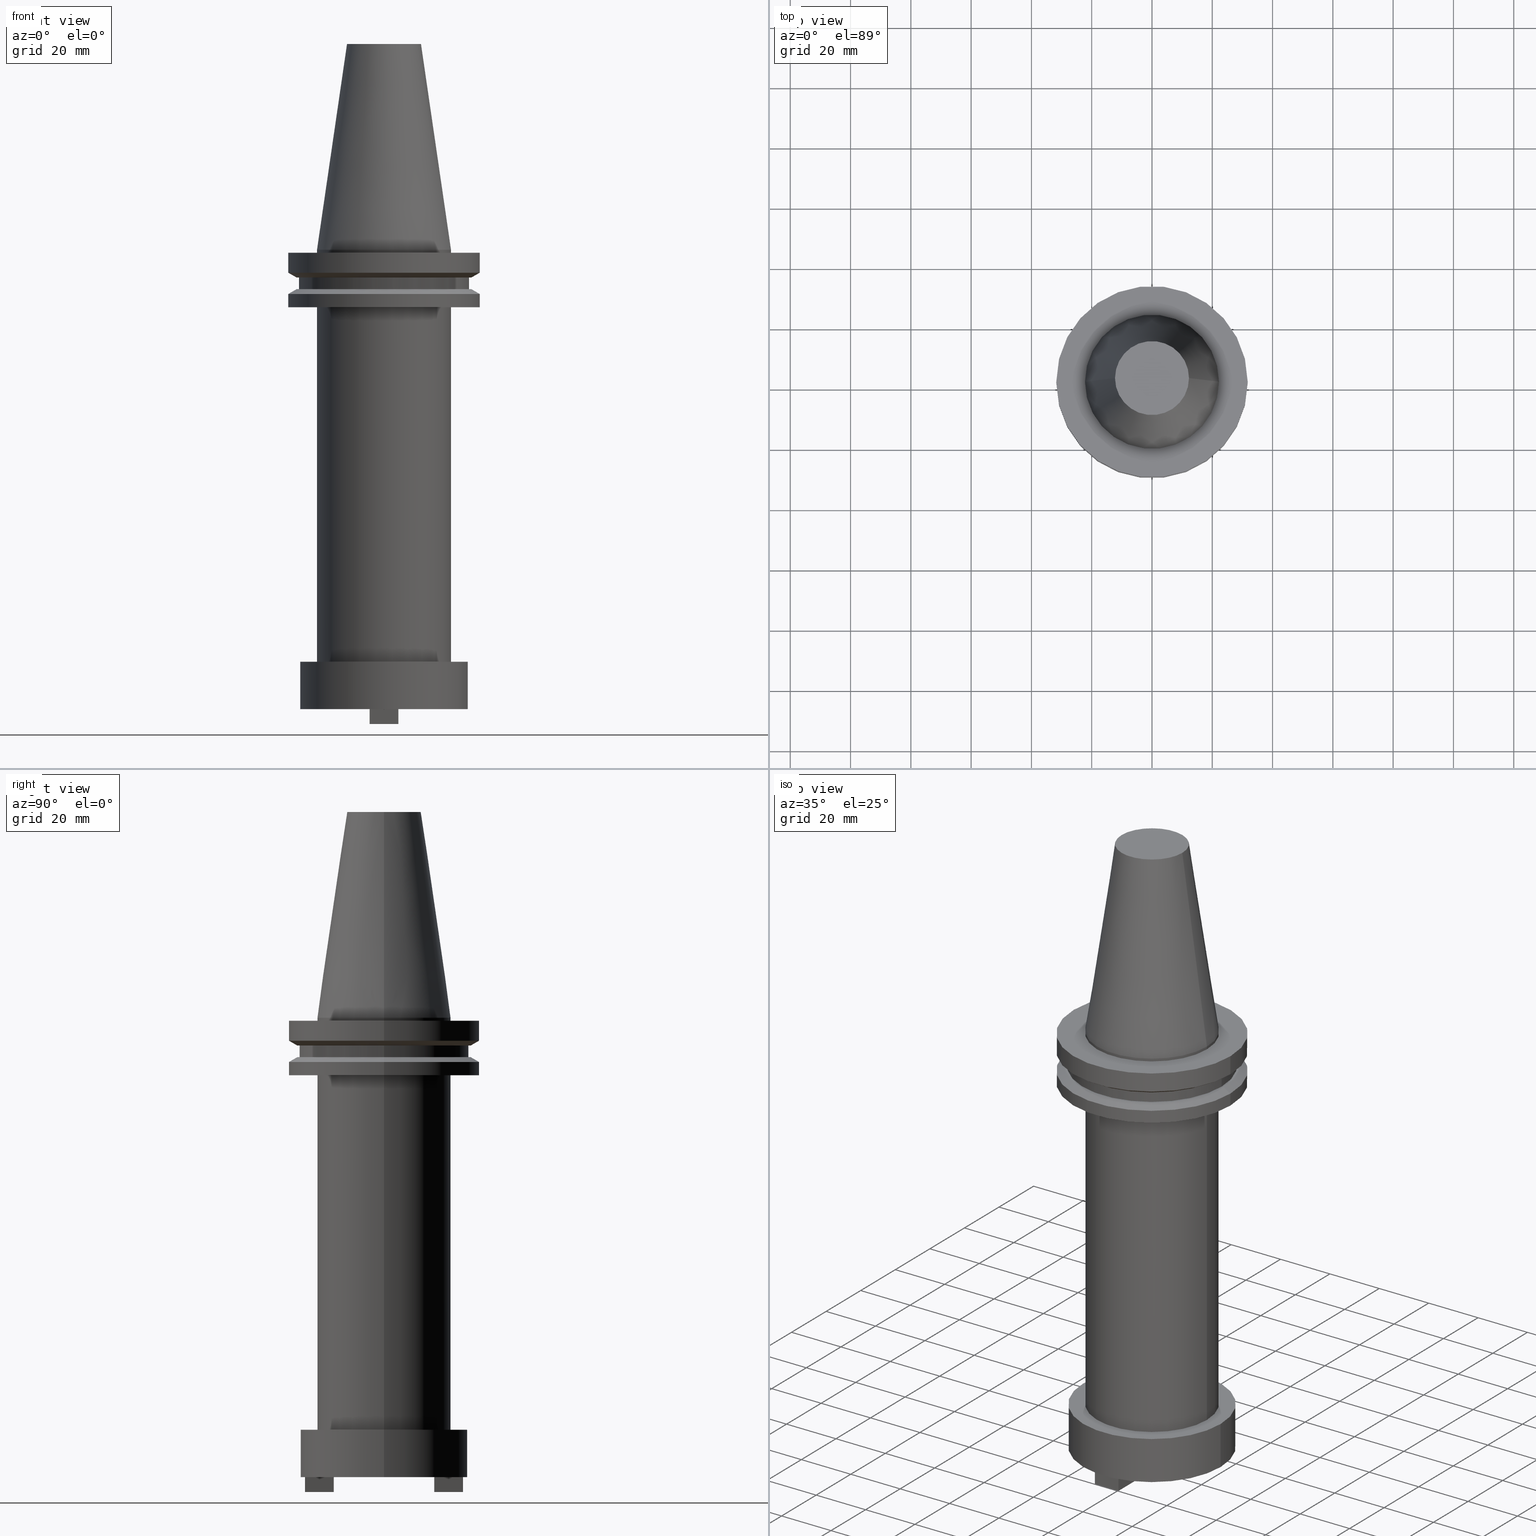
[diagram: canonical four-view strip — front | top / right | iso, engineering-drawing reading convention]
A machine part, canonical four-view strip (front | top / right | iso — engineering-drawing reading convention). The complete STEP part file that produces these views, byte-faithful:
ISO-10303-21;
HEADER;
FILE_DESCRIPTION (( 'STEP AP203' ),
    '1' );
FILE_NAME ('BCV40-SMC1_000-6.STEP',
    '2022-02-28T14:18:54',
    ( '' ),
    ( '' ),
    'SwSTEP 2.0',
    'SolidWorks 2021',
    '' );
FILE_SCHEMA (( 'CONFIG_CONTROL_DESIGN' ));
ENDSEC;

DATA;
#1 = CARTESIAN_POINT ( 'NONE',  ( -28.17999999999999972, 3.451054679997241634E-15, -9.204999999999991189 ) ) ;
#2 = ORIENTED_EDGE ( 'NONE', *, *, #783, .F. ) ;
#3 = AXIS2_PLACEMENT_3D ( 'NONE', #188, #446, #980 ) ;
#4 = DIRECTION ( 'NONE',  ( -0.000000000000000000, -0.000000000000000000, 1.000000000000000000 ) ) ;
#5 = DIRECTION ( 'NONE',  ( -0.000000000000000000, -0.000000000000000000, 1.000000000000000000 ) ) ;
#6 = VERTEX_POINT ( 'NONE', #564 ) ;
#7 = DIRECTION ( 'NONE',  ( 1.000000000000000000, 0.000000000000000000, 0.000000000000000000 ) ) ;
#8 = ADVANCED_FACE ( 'NONE', ( #812 ), #52, .T. ) ;
#9 = CIRCLE ( 'NONE', #66, 31.75000000000000000 ) ;
#10 = AXIS2_PLACEMENT_3D ( 'NONE', #611, #628, #867 ) ;
#11 = DIRECTION ( 'NONE',  ( 1.000000000000000000, -0.000000000000000000, -0.000000000000000000 ) ) ;
#12 = ORIENTED_EDGE ( 'NONE', *, *, #670, .F. ) ;
#13 = LINE ( 'NONE', #532, #98 ) ;
#14 = CARTESIAN_POINT ( 'NONE',  ( 12.27178102086201150, 2.112318622904291439E-15, 68.25000000000000000 ) ) ;
#15 = EDGE_CURVE ( 'NONE', #299, #379, #765, .T. ) ;
#16 = DIRECTION ( 'NONE',  ( -0.000000000000000000, -0.000000000000000000, 1.000000000000000000 ) ) ;
#17 = ORIENTED_EDGE ( 'NONE', *, *, #191, .F. ) ;
#18 = DIRECTION ( 'NONE',  ( -0.000000000000000000, -0.000000000000000000, 1.000000000000000000 ) ) ;
#19 = CARTESIAN_POINT ( 'NONE',  ( 0.000000000000000000, 0.000000000000000000, -157.2999999999999829 ) ) ;
#20 = LOCAL_TIME ( 8, 18, 54.00000000000000000, #407 ) ;
#21 = AXIS2_PLACEMENT_3D ( 'NONE', #1062, #900, #141 ) ;
#22 = EDGE_CURVE ( 'NONE', #304, #1029, #481, .T. ) ;
#23 = DIRECTION ( 'NONE',  ( -0.000000000000000000, -0.000000000000000000, 1.000000000000000000 ) ) ;
#24 = VERTEX_POINT ( 'NONE', #844 ) ;
#25 = FACE_OUTER_BOUND ( 'NONE', #919, .T. ) ;
#26 = CARTESIAN_POINT ( 'NONE',  ( 0.000000000000000000, 22.22499999999999787, -35.04999999999999716 ) ) ;
#27 = AXIS2_PLACEMENT_3D ( 'NONE', #956, #882, #970 ) ;
#28 = AXIS2_PLACEMENT_3D ( 'NONE', #369, #537, #182 ) ;
#29 = FACE_OUTER_BOUND ( 'NONE', #979, .T. ) ;
#30 = EDGE_CURVE ( 'NONE', #379, #299, #782, .T. ) ;
#31 = ORIENTED_EDGE ( 'NONE', *, *, #509, .T. ) ;
#32 = DIRECTION ( 'NONE',  ( -0.000000000000000000, 1.000000000000000000, -0.000000000000000000 ) ) ;
#33 = DIRECTION ( 'NONE',  ( -1.000000000000000000, 0.000000000000000000, -0.000000000000000000 ) ) ;
#34 = CIRCLE ( 'NONE', #122, 28.17999999999999972 ) ;
#35 = VERTEX_POINT ( 'NONE', #163 ) ;
#36 = AXIS2_PLACEMENT_3D ( 'NONE', #189, #361, #286 ) ;
#37 = DIRECTION ( 'NONE',  ( -0.000000000000000000, -0.000000000000000000, 1.000000000000000000 ) ) ;
#38 = EDGE_LOOP ( 'NONE', ( #1088, #193 ) ) ;
#39 = CARTESIAN_POINT ( 'NONE',  ( 0.000000000000000000, 0.000000000000000000, -14.65472339340266572 ) ) ;
#40 = CARTESIAN_POINT ( 'NONE',  ( 0.000000000000000000, 22.22500000000000142, -136.6500000000000057 ) ) ;
#41 = EDGE_LOOP ( 'NONE', ( #594, #679 ) ) ;
#42 = FACE_OUTER_BOUND ( 'NONE', #907, .T. ) ;
#43 = VERTEX_POINT ( 'NONE', #744 ) ;
#44 = APPROVAL_DATE_TIME ( #734, #930 ) ;
#45 = CARTESIAN_POINT ( 'NONE',  ( 4.762499999999998401, 16.68249999999999744, -157.2999999999999829 ) ) ;
#46 = EDGE_CURVE ( 'NONE', #746, #24, #95, .T. ) ;
#47 = ORIENTED_EDGE ( 'NONE', *, *, #918, .F. ) ;
#48 = FACE_BOUND ( 'NONE', #41, .T. ) ;
#49 = EDGE_LOOP ( 'NONE', ( #559, #585 ) ) ;
#50 = APPLICATION_PROTOCOL_DEFINITION ( 'international standard', 'config_control_design', 1994, #333 ) ;
#51 = CARTESIAN_POINT ( 'NONE',  ( 0.000000000000000000, 0.000000000000000000, 0.000000000000000000 ) ) ;
#52 = PLANE ( 'NONE',  #1064 ) ;
#53 = DIRECTION ( 'NONE',  ( 1.000000000000000000, 0.000000000000000000, 0.000000000000000000 ) ) ;
#54 = EDGE_LOOP ( 'NONE', ( #983, #957, #399, #131 ) ) ;
#55 = DIRECTION ( 'NONE',  ( 0.000000000000000000, -1.000000000000000000, 0.000000000000000000 ) ) ;
#56 = DIRECTION ( 'NONE',  ( -1.000000000000000000, 0.000000000000000000, 0.000000000000000000 ) ) ;
#57 = ORGANIZATION ( 'UNSPECIFIED', 'UNSPECIFIED', '' ) ;
#58 = DIRECTION ( 'NONE',  ( 0.000000000000000000, -1.000000000000000000, -0.000000000000000000 ) ) ;
#59 = ORIENTED_EDGE ( 'NONE', *, *, #805, .T. ) ;
#60 = ADVANCED_FACE ( 'NONE', ( #252 ), #595, .T. ) ;
#61 = PERSON_AND_ORGANIZATION_ROLE ( 'classification_officer' ) ;
#62 = CARTESIAN_POINT ( 'NONE',  ( 4.762499999999998401, -16.68250000000000099, -157.2999999999999829 ) ) ;
#63 = CYLINDRICAL_SURFACE ( 'NONE', #309, 5.754999999999996341 ) ;
#64 = CARTESIAN_POINT ( 'NONE',  ( 0.000000000000000000, 0.000000000000000000, -9.204999999999991189 ) ) ;
#65 = ORIENTED_EDGE ( 'NONE', *, *, #700, .F. ) ;
#66 = AXIS2_PLACEMENT_3D ( 'NONE', #1050, #1076, #53 ) ;
#67 = CARTESIAN_POINT ( 'NONE',  ( -4.762500000000001954, 26.20749999999999957, -157.2999999999999829 ) ) ;
#68 = EDGE_CURVE ( 'NONE', #273, #43, #826, .T. ) ;
#69 = VECTOR ( 'NONE', #1035, 1000.000000000000000 ) ;
#70 = FACE_BOUND ( 'NONE', #197, .T. ) ;
#71 = FACE_BOUND ( 'NONE', #975, .T. ) ;
#72 = ORIENTED_EDGE ( 'NONE', *, *, #386, .T. ) ;
#73 = ADVANCED_FACE ( 'NONE', ( #315 ), #518, .T. ) ;
#74 = CARTESIAN_POINT ( 'NONE',  ( 0.000000000000000000, 0.000000000000000000, 68.25000000000000000 ) ) ;
#75 = VERTEX_POINT ( 'NONE', #436 ) ;
#76 = CC_DESIGN_PERSON_AND_ORGANIZATION_ASSIGNMENT ( #126, #644, ( #493 ) ) ;
#77 = CARTESIAN_POINT ( 'NONE',  ( -4.762500000000001954, 26.20749999999999957, -157.2999999999999829 ) ) ;
#78 = VERTEX_POINT ( 'NONE', #347 ) ;
#79 = DIRECTION ( 'NONE',  ( -0.000000000000000000, -0.000000000000000000, 1.000000000000000000 ) ) ;
#80 = AXIS2_PLACEMENT_3D ( 'NONE', #851, #1087, #86 ) ;
#81 = PRODUCT_RELATED_PRODUCT_CATEGORY ( 'detail', '', ( #493 ) ) ;
#82 = CARTESIAN_POINT ( 'NONE',  ( -4.762500000000001954, 16.68249999999999744, -157.2999999999999829 ) ) ;
#83 = ORIENTED_EDGE ( 'NONE', *, *, #836, .F. ) ;
#84 = DIRECTION ( 'NONE',  ( -0.000000000000000000, -0.000000000000000000, 1.000000000000000000 ) ) ;
#85 = VECTOR ( 'NONE', #293, 1000.000000000000000 ) ;
#86 = DIRECTION ( 'NONE',  ( 1.000000000000000000, 0.000000000000000000, 0.000000000000000000 ) ) ;
#87 = EDGE_CURVE ( 'NONE', #632, #1049, #693, .T. ) ;
#88 = ORIENTED_EDGE ( 'NONE', *, *, #972, .F. ) ;
#89 = AXIS2_PLACEMENT_3D ( 'NONE', #933, #514, #402 ) ;
#90 = CARTESIAN_POINT ( 'NONE',  ( 0.000000000000000000, 28.97919780457007732, -9.204999999999996518 ) ) ;
#91 = DIRECTION ( 'NONE',  ( 1.000000000000000000, 0.000000000000000000, 0.000000000000000000 ) ) ;
#92 = ORIENTED_EDGE ( 'NONE', *, *, #68, .T. ) ;
#93 = DIRECTION ( 'NONE',  ( 0.000000000000000000, 0.000000000000000000, -1.000000000000000000 ) ) ;
#94 = EDGE_CURVE ( 'NONE', #337, #284, #357, .T. ) ;
#95 = LINE ( 'NONE', #422, #647 ) ;
#96 = APPROVAL ( #1054, 'UNSPECIFIED' ) ;
#97 = AXIS2_PLACEMENT_3D ( 'NONE', #838, #587, #583 ) ;
#98 = VECTOR ( 'NONE', #605, 1000.000000000000000 ) ;
#99 = CARTESIAN_POINT ( 'NONE',  ( -28.17999999999999972, 3.451054679997241634E-15, 68.25000000000000000 ) ) ;
#100 = ORIENTED_EDGE ( 'NONE', *, *, #314, .T. ) ;
#101 = PLANE ( 'NONE',  #545 ) ;
#102 = CARTESIAN_POINT ( 'NONE',  ( 31.75000000000000000, 0.000000000000000000, 68.25000000000000000 ) ) ;
#103 = EDGE_CURVE ( 'NONE', #843, #279, #736, .T. ) ;
#104 = DIRECTION ( 'NONE',  ( -0.000000000000000000, -0.000000000000000000, 1.000000000000000000 ) ) ;
#105 = ORIENTED_EDGE ( 'NONE', *, *, #22, .T. ) ;
#106 = FACE_OUTER_BOUND ( 'NONE', #762, .T. ) ;
#107 = CARTESIAN_POINT ( 'NONE',  ( -4.762500000000001954, 26.20749999999999957, -157.2999999999999829 ) ) ;
#108 = AXIS2_PLACEMENT_3D ( 'NONE', #763, #322, #662 ) ;
#109 = AXIS2_PLACEMENT_3D ( 'NONE', #40, #453, #33 ) ;
#110 = ADVANCED_FACE ( 'NONE', ( #928 ), #258, .T. ) ;
#111 = LINE ( 'NONE', #788, #1015 ) ;
#112 = VERTEX_POINT ( 'NONE', #1019 ) ;
#113 = CARTESIAN_POINT ( 'NONE',  ( 4.762499999999998401, 26.20749999999999957, -157.2999999999999829 ) ) ;
#114 = LINE ( 'NONE', #799, #85 ) ;
#115 = CIRCLE ( 'NONE', #929, 22.22500000000000142 ) ;
#116 = ORIENTED_EDGE ( 'NONE', *, *, #438, .F. ) ;
#117 = CONICAL_SURFACE ( 'NONE', #575, 31.75000000000000000, 1.047197551196597853 ) ;
#118 = LINE ( 'NONE', #860, #403 ) ;
#119 = ORIENTED_EDGE ( 'NONE', *, *, #805, .F. ) ;
#120 = LINE ( 'NONE', #435, #168 ) ;
#121 = DIRECTION ( 'NONE',  ( -0.000000000000000000, -0.000000000000000000, 1.000000000000000000 ) ) ;
#122 = AXIS2_PLACEMENT_3D ( 'NONE', #892, #313, #578 ) ;
#123 = ORIENTED_EDGE ( 'NONE', *, *, #1001, .F. ) ;
#124 = CARTESIAN_POINT ( 'NONE',  ( 4.762499999999998401, 26.20749999999999957, -157.2999999999999829 ) ) ;
#125 = EDGE_LOOP ( 'NONE', ( #627, #47 ) ) ;
#126 = PERSON_AND_ORGANIZATION ( #960, #57 ) ;
#127 = DIRECTION ( 'NONE',  ( 1.000000000000000000, 0.000000000000000000, 0.000000000000000000 ) ) ;
#128 = EDGE_CURVE ( 'NONE', #78, #230, #841, .T. ) ;
#129 = ORIENTED_EDGE ( 'NONE', *, *, #982, .T. ) ;
#130 = CARTESIAN_POINT ( 'NONE',  ( -22.22500000000000142, 0.000000000000000000, 0.000000000000000000 ) ) ;
#131 = ORIENTED_EDGE ( 'NONE', *, *, #653, .F. ) ;
#132 = CALENDAR_DATE ( 2022, 28, 2 ) ;
#133 = LINE ( 'NONE', #909, #548 ) ;
#134 = ADVANCED_FACE ( 'NONE', ( #924, #249 ), #905, .F. ) ;
#135 = EDGE_LOOP ( 'NONE', ( #874, #712 ) ) ;
#136 = DIRECTION ( 'NONE',  ( 0.000000000000000000, 0.000000000000000000, -1.000000000000000000 ) ) ;
#137 = CIRCLE ( 'NONE', #654, 31.75000000000000000 ) ;
#138 = DESIGN_CONTEXT ( 'detailed design', #144, 'design' ) ;
#139 = VERTEX_POINT ( 'NONE', #590 ) ;
#140 = LINE ( 'NONE', #219, #586 ) ;
#141 = DIRECTION ( 'NONE',  ( 1.000000000000000000, 0.000000000000000000, 0.000000000000000000 ) ) ;
#142 = EDGE_CURVE ( 'NONE', #75, #6, #360, .T. ) ;
#143 = DIRECTION ( 'NONE',  ( -0.000000000000000000, -0.000000000000000000, 1.000000000000000000 ) ) ;
#144 = APPLICATION_CONTEXT ( 'configuration controlled 3d designs of mechanical parts and assemblies' ) ;
#145 = ORIENTED_EDGE ( 'NONE', *, *, #103, .T. ) ;
#146 = PERSON_AND_ORGANIZATION_ROLE ( 'creator' ) ;
#147 = CARTESIAN_POINT ( 'NONE',  ( 22.22500000000000142, 0.000000000000000000, -1.000000000000000888 ) ) ;
#148 = CARTESIAN_POINT ( 'NONE',  ( 0.000000000000000000, 0.000000000000000000, -152.4000000000000057 ) ) ;
#149 = DIRECTION ( 'NONE',  ( -0.000000000000000000, -0.000000000000000000, 1.000000000000000000 ) ) ;
#150 = ORIENTED_EDGE ( 'NONE', *, *, #601, .T. ) ;
#151 = APPROVAL_ROLE ( '' ) ;
#152 = DIRECTION ( 'NONE',  ( -0.000000000000000000, -0.000000000000000000, 1.000000000000000000 ) ) ;
#153 = CARTESIAN_POINT ( 'NONE',  ( 0.000000000000000000, 0.000000000000000000, -35.04999999999999716 ) ) ;
#154 = CIRCLE ( 'NONE', #294, 22.22500000000000142 ) ;
#155 = CARTESIAN_POINT ( 'NONE',  ( 0.000000000000000000, 0.000000000000000000, -14.65472339340266572 ) ) ;
#156 = ORIENTED_EDGE ( 'NONE', *, *, #776, .T. ) ;
#157 = VECTOR ( 'NONE', #470, 1000.000000000000000 ) ;
#158 = FACE_OUTER_BOUND ( 'NONE', #706, .T. ) ;
#159 = VERTEX_POINT ( 'NONE', #606 ) ;
#160 = ADVANCED_FACE ( 'NONE', ( #857 ), #63, .F. ) ;
#161 = CARTESIAN_POINT ( 'NONE',  ( 4.762499999999998401, -16.68250000000000099, -157.2999999999999829 ) ) ;
#162 = ORIENTED_EDGE ( 'NONE', *, *, #1086, .T. ) ;
#163 = CARTESIAN_POINT ( 'NONE',  ( -12.27178102086201150, 0.000000000000000000, 68.25000000000000000 ) ) ;
#164 = PLANE ( 'NONE',  #877 ) ;
#165 = ORIENTED_EDGE ( 'NONE', *, *, #534, .T. ) ;
#166 = AXIS2_PLACEMENT_3D ( 'NONE', #760, #917, #672 ) ;
#167 = DIRECTION ( 'NONE',  ( -0.000000000000000000, 1.000000000000000000, -0.000000000000000000 ) ) ;
#168 = VECTOR ( 'NONE', #461, 1000.000000000000000 ) ;
#169 = ADVANCED_FACE ( 'NONE', ( #680 ), #937, .T. ) ;
#170 = DIRECTION ( 'NONE',  ( -0.000000000000000000, -0.000000000000000000, 1.000000000000000000 ) ) ;
#171 = VERTEX_POINT ( 'NONE', #990 ) ;
#172 = DIRECTION ( 'NONE',  ( 1.000000000000000000, 0.000000000000000000, 0.000000000000000000 ) ) ;
#173 = AXIS2_PLACEMENT_3D ( 'NONE', #107, #886, #281 ) ;
#174 = EDGE_CURVE ( 'NONE', #224, #866, #646, .T. ) ;
#175 = CARTESIAN_POINT ( 'NONE',  ( -31.74999999999999289, 3.888253587292845687E-15, -19.04999999999999716 ) ) ;
#176 = EDGE_LOOP ( 'NONE', ( #162, #696, #890, #1052 ) ) ;
#177 = CARTESIAN_POINT ( 'NONE',  ( 31.75000000000000000, 3.888253587292846476E-15, -14.65472339340266572 ) ) ;
#178 = VECTOR ( 'NONE', #704, 1000.000000000000000 ) ;
#179 = CARTESIAN_POINT ( 'NONE',  ( 0.000000000000000000, 0.000000000000000000, 68.25000000000000000 ) ) ;
#180 = FACE_OUTER_BOUND ( 'NONE', #513, .T. ) ;
#181 = ORIENTED_EDGE ( 'NONE', *, *, #371, .F. ) ;
#182 = DIRECTION ( 'NONE',  ( 1.000000000000000000, 0.000000000000000000, 0.000000000000000000 ) ) ;
#183 = PLANE ( 'NONE',  #173 ) ;
#184 = ADVANCED_FACE ( 'NONE', ( #544, #462 ), #959, .F. ) ;
#185 = AXIS2_PLACEMENT_3D ( 'NONE', #1038, #695, #271 ) ;
#186 = CARTESIAN_POINT ( 'NONE',  ( 0.000000000000000000, 0.000000000000000000, -152.4000000000000057 ) ) ;
#187 = VERTEX_POINT ( 'NONE', #538 ) ;
#188 = CARTESIAN_POINT ( 'NONE',  ( 0.000000000000000000, 0.000000000000000000, -35.04999999999999716 ) ) ;
#189 = CARTESIAN_POINT ( 'NONE',  ( 0.000000000000000000, 0.000000000000000000, -1.000000000000000888 ) ) ;
#190 = CIRCLE ( 'NONE', #346, 22.22500000000000142 ) ;
#191 = EDGE_CURVE ( 'NONE', #171, #139, #692, .T. ) ;
#192 = DIRECTION ( 'NONE',  ( -0.000000000000000000, -0.000000000000000000, 1.000000000000000000 ) ) ;
#193 = ORIENTED_EDGE ( 'NONE', *, *, #329, .F. ) ;
#194 = CARTESIAN_POINT ( 'NONE',  ( 4.762499999999998401, 16.68249999999999744, -157.2999999999999829 ) ) ;
#195 = DIRECTION ( 'NONE',  ( 1.000000000000000000, -0.000000000000000000, -0.000000000000000000 ) ) ;
#196 = VECTOR ( 'NONE', #947, 1000.000000000000000 ) ;
#197 = EDGE_LOOP ( 'NONE', ( #507, #181, #922, #65 ) ) ;
#198 = CC_DESIGN_DATE_AND_TIME_ASSIGNMENT ( #573, #550, ( #393 ) ) ;
#199 = FACE_BOUND ( 'NONE', #441, .T. ) ;
#200 = ORIENTED_EDGE ( 'NONE', *, *, #753, .T. ) ;
#201 = CARTESIAN_POINT ( 'NONE',  ( -4.762500000000001954, 26.20749999999999957, -157.2999999999999829 ) ) ;
#202 = CARTESIAN_POINT ( 'NONE',  ( 0.000000000000000000, 0.000000000000000000, 0.000000000000000000 ) ) ;
#203 = VECTOR ( 'NONE', #303, 1000.000000000000000 ) ;
#204 = ORIENTED_EDGE ( 'NONE', *, *, #94, .T. ) ;
#205 = AXIS2_PLACEMENT_3D ( 'NONE', #797, #93, #1024 ) ;
#206 = EDGE_CURVE ( 'NONE', #24, #112, #443, .T. ) ;
#207 = FACE_OUTER_BOUND ( 'NONE', #701, .T. ) ;
#208 = ORIENTED_EDGE ( 'NONE', *, *, #326, .F. ) ;
#209 = PERSON_AND_ORGANIZATION ( #960, #57 ) ;
#210 = CARTESIAN_POINT ( 'NONE',  ( -31.75000000000000000, 3.888253587292846476E-15, -14.65472339340266572 ) ) ;
#211 = ORIENTED_EDGE ( 'NONE', *, *, #342, .T. ) ;
#212 = CIRCLE ( 'NONE', #600, 22.22500000000000142 ) ;
#213 = DIRECTION ( 'NONE',  ( -0.000000000000000000, 0.000000000000000000, -1.000000000000000000 ) ) ;
#214 = AXIS2_PLACEMENT_3D ( 'NONE', #26, #365, #810 ) ;
#215 = DIRECTION ( 'NONE',  ( -0.000000000000000000, -0.000000000000000000, 1.000000000000000000 ) ) ;
#216 = EDGE_CURVE ( 'NONE', #397, #639, #335, .T. ) ;
#217 = ORIENTED_EDGE ( 'NONE', *, *, #800, .F. ) ;
#218 = PERSON_AND_ORGANIZATION ( #960, #57 ) ;
#219 = CARTESIAN_POINT ( 'NONE',  ( -4.762500000000001954, -26.20750000000000313, -157.2999999999999829 ) ) ;
#220 = AXIS2_PLACEMENT_3D ( 'NONE', #320, #479, #967 ) ;
#221 = AXIS2_PLACEMENT_3D ( 'NONE', #487, #84, #234 ) ;
#222 = EDGE_LOOP ( 'NONE', ( #116, #451 ) ) ;
#223 = CARTESIAN_POINT ( 'NONE',  ( 0.000000000000000000, 31.75000000000000000, -0.9999999999999995559 ) ) ;
#224 = VERTEX_POINT ( 'NONE', #210 ) ;
#225 = CARTESIAN_POINT ( 'NONE',  ( -4.762500000000001954, -16.68250000000000099, -157.2999999999999829 ) ) ;
#226 = EDGE_CURVE ( 'NONE', #284, #630, #114, .T. ) ;
#227 = ORIENTED_EDGE ( 'NONE', *, *, #226, .T. ) ;
#228 = FACE_OUTER_BOUND ( 'NONE', #887, .T. ) ;
#229 = AXIS2_PLACEMENT_3D ( 'NONE', #674, #412, #500 ) ;
#230 = VERTEX_POINT ( 'NONE', #370 ) ;
#231 =( LENGTH_UNIT ( ) NAMED_UNIT ( * ) SI_UNIT ( .MILLI., .METRE. ) );
#232 = CARTESIAN_POINT ( 'NONE',  ( 4.762499999999998401, -16.68250000000000099, -152.4000000000000057 ) ) ;
#233 = EDGE_CURVE ( 'NONE', #302, #894, #1041, .T. ) ;
#234 = DIRECTION ( 'NONE',  ( 1.000000000000000000, 0.000000000000000000, 0.000000000000000000 ) ) ;
#235 = DIRECTION ( 'NONE',  ( 0.000000000000000000, 0.000000000000000000, -1.000000000000000000 ) ) ;
#236 = ORIENTED_EDGE ( 'NONE', *, *, #528, .T. ) ;
#237 = CARTESIAN_POINT ( 'NONE',  ( -31.75000000000000000, 3.888253587292846476E-15, 68.25000000000000000 ) ) ;
#238 = CC_DESIGN_APPROVAL ( #515, ( #503 ) ) ;
#239 = PLANE ( 'NONE',  #348 ) ;
#240 = DIRECTION ( 'NONE',  ( -0.000000000000000000, -0.000000000000000000, 1.000000000000000000 ) ) ;
#241 = ORIENTED_EDGE ( 'NONE', *, *, #206, .T. ) ;
#242 = EDGE_CURVE ( 'NONE', #171, #808, #994, .T. ) ;
#243 = CIRCLE ( 'NONE', #964, 27.80000000000000426 ) ;
#244 = LINE ( 'NONE', #425, #510 ) ;
#245 = ORIENTED_EDGE ( 'NONE', *, *, #996, .F. ) ;
#246 = AXIS2_PLACEMENT_3D ( 'NONE', #547, #143, #807 ) ;
#247 = CARTESIAN_POINT ( 'NONE',  ( 0.000000000000000000, 31.74999999999999289, -19.04999999999999716 ) ) ;
#248 = EDGE_LOOP ( 'NONE', ( #555, #100, #119, #17 ) ) ;
#249 = FACE_BOUND ( 'NONE', #710, .T. ) ;
#250 = LINE ( 'NONE', #82, #987 ) ;
#251 = ORIENTED_EDGE ( 'NONE', *, *, #260, .F. ) ;
#252 = FACE_OUTER_BOUND ( 'NONE', #385, .T. ) ;
#253 = EDGE_CURVE ( 'NONE', #843, #171, #270, .T. ) ;
#254 = DATE_AND_TIME ( #671, #356 ) ;
#255 = CARTESIAN_POINT ( 'NONE',  ( 4.762499999999998401, -26.20750000000000668, -152.4000000000000057 ) ) ;
#256 = ORIENTED_EDGE ( 'NONE', *, *, #336, .F. ) ;
#257 = AXIS2_PLACEMENT_3D ( 'NONE', #415, #428, #926 ) ;
#258 = CYLINDRICAL_SURFACE ( 'NONE', #976, 28.17999999999999972 ) ;
#259 = VECTOR ( 'NONE', #814, 999.9999999999998863 ) ;
#260 = EDGE_CURVE ( 'NONE', #767, #746, #714, .T. ) ;
#261 = VECTOR ( 'NONE', #324, 1000.000000000000000 ) ;
#262 = DIRECTION ( 'NONE',  ( -0.8660254037844389297, 1.060575238724907285E-16, 0.4999999999999995004 ) ) ;
#263 = ORIENTED_EDGE ( 'NONE', *, *, #226, .F. ) ;
#264 = DIRECTION ( 'NONE',  ( -0.000000000000000000, -0.000000000000000000, 1.000000000000000000 ) ) ;
#265 = EDGE_CURVE ( 'NONE', #299, #6, #634, .T. ) ;
#266 = CARTESIAN_POINT ( 'NONE',  ( 0.000000000000000000, 0.000000000000000000, -19.04999999999999716 ) ) ;
#267 = LOCAL_TIME ( 8, 18, 54.00000000000000000, #651 ) ;
#268 = EDGE_LOOP ( 'NONE', ( #83, #730, #779, #445 ) ) ;
#269 = CARTESIAN_POINT ( 'NONE',  ( 4.762499999999998401, -16.68250000000000099, -157.2999999999999829 ) ) ;
#270 = LINE ( 'NONE', #551, #798 ) ;
#271 = DIRECTION ( 'NONE',  ( 1.000000000000000000, 0.000000000000000000, 0.000000000000000000 ) ) ;
#272 = ADVANCED_FACE ( 'NONE', ( #275 ), #183, .F. ) ;
#273 = VERTEX_POINT ( 'NONE', #447 ) ;
#274 = FACE_OUTER_BOUND ( 'NONE', #549, .T. ) ;
#275 = FACE_OUTER_BOUND ( 'NONE', #992, .T. ) ;
#276 = ADVANCED_BREP_SHAPE_REPRESENTATION ( 'BCV40-SMC1_000-6', ( #332, #220 ), #1009 ) ;
#277 = VECTOR ( 'NONE', #5, 1000.000000000000000 ) ;
#278 = FACE_OUTER_BOUND ( 'NONE', #135, .T. ) ;
#279 = VERTEX_POINT ( 'NONE', #529 ) ;
#280 = DIRECTION ( 'NONE',  ( -0.000000000000000000, 0.000000000000000000, 1.000000000000000000 ) ) ;
#281 = DIRECTION ( 'NONE',  ( 0.000000000000000000, 0.000000000000000000, -1.000000000000000000 ) ) ;
#282 = VECTOR ( 'NONE', #195, 1000.000000000000000 ) ;
#283 = CYLINDRICAL_SURFACE ( 'NONE', #27, 22.22500000000000142 ) ;
#284 = VERTEX_POINT ( 'NONE', #709 ) ;
#285 = LINE ( 'NONE', #194, #966 ) ;
#286 = DIRECTION ( 'NONE',  ( 1.000000000000000000, 0.000000000000000000, 0.000000000000000000 ) ) ;
#287 = CC_DESIGN_SECURITY_CLASSIFICATION ( #503, ( #764 ) ) ;
#288 = ADVANCED_FACE ( 'NONE', ( #787 ), #863, .T. ) ;
#289 = ORIENTED_EDGE ( 'NONE', *, *, #589, .T. ) ;
#290 = LINE ( 'NONE', #631, #858 ) ;
#291 = ORIENTED_EDGE ( 'NONE', *, *, #715, .T. ) ;
#292 = MECHANICAL_CONTEXT ( 'NONE', #333, 'mechanical' ) ;
#293 = DIRECTION ( 'NONE',  ( -0.000000000000000000, -0.000000000000000000, 1.000000000000000000 ) ) ;
#294 = AXIS2_PLACEMENT_3D ( 'NONE', #678, #506, #340 ) ;
#295 = ORIENTED_EDGE ( 'NONE', *, *, #776, .F. ) ;
#296 = ADVANCED_FACE ( 'NONE', ( #629 ), #880, .T. ) ;
#297 = AXIS2_PLACEMENT_3D ( 'NONE', #223, #136, #565 ) ;
#298 = CARTESIAN_POINT ( 'NONE',  ( 0.000000000000000000, 0.000000000000000000, -1.000000000000000888 ) ) ;
#299 = VERTEX_POINT ( 'NONE', #467 ) ;
#300 = SECURITY_CLASSIFICATION_LEVEL ( 'unclassified' ) ;
#301 = LINE ( 'NONE', #45, #458 ) ;
#302 = VERTEX_POINT ( 'NONE', #14 ) ;
#303 = DIRECTION ( 'NONE',  ( -0.8660254037844387076, 0.000000000000000000, -0.4999999999999998890 ) ) ;
#304 = VERTEX_POINT ( 'NONE', #698 ) ;
#305 = ADVANCED_FACE ( 'NONE', ( #948 ), #533, .F. ) ;
#306 = DIRECTION ( 'NONE',  ( 1.000000000000000000, 0.000000000000000000, 0.000000000000000000 ) ) ;
#307 = CC_DESIGN_APPROVAL ( #930, ( #393 ) ) ;
#308 = EDGE_LOOP ( 'NONE', ( #368, #1071, #852, #105 ) ) ;
#309 = AXIS2_PLACEMENT_3D ( 'NONE', #338, #4, #676 ) ;
#310 = DIRECTION ( 'NONE',  ( 0.000000000000000000, -0.000000000000000000, 1.000000000000000000 ) ) ;
#311 = ORIENTED_EDGE ( 'NONE', *, *, #354, .F. ) ;
#312 = APPLICATION_PROTOCOL_DEFINITION ( 'international standard', 'config_control_design', 1994, #144 ) ;
#313 = DIRECTION ( 'NONE',  ( -0.000000000000000000, -0.000000000000000000, 1.000000000000000000 ) ) ;
#314 = EDGE_CURVE ( 'NONE', #808, #395, #720, .T. ) ;
#315 = FACE_OUTER_BOUND ( 'NONE', #248, .T. ) ;
#316 = AXIS2_PLACEMENT_3D ( 'NONE', #619, #950, #854 ) ;
#317 = PLANE ( 'NONE',  #615 ) ;
#318 = AXIS2_PLACEMENT_3D ( 'NONE', #153, #577, #786 ) ;
#319 = VERTEX_POINT ( 'NONE', #1055 ) ;
#320 = CARTESIAN_POINT ( 'NONE',  ( 0.000000000000000000, 0.000000000000000000, 0.000000000000000000 ) ) ;
#321 = CARTESIAN_POINT ( 'NONE',  ( 0.000000000000000000, 0.000000000000000000, -9.205000000000005400 ) ) ;
#322 = DIRECTION ( 'NONE',  ( -0.000000000000000000, -0.000000000000000000, 1.000000000000000000 ) ) ;
#323 = DIRECTION ( 'NONE',  ( 1.000000000000000000, 0.000000000000000000, 0.000000000000000000 ) ) ;
#324 = DIRECTION ( 'NONE',  ( -1.000000000000000000, 0.000000000000000000, 0.000000000000000000 ) ) ;
#325 = ORIENTED_EDGE ( 'NONE', *, *, #850, .T. ) ;
#326 = EDGE_CURVE ( 'NONE', #667, #230, #1067, .T. ) ;
#327 = CYLINDRICAL_SURFACE ( 'NONE', #742, 22.22500000000000142 ) ;
#328 = VERTEX_POINT ( 'NONE', #557 ) ;
#329 = EDGE_CURVE ( 'NONE', #279, #843, #920, .T. ) ;
#330 = FACE_OUTER_BOUND ( 'NONE', #1039, .T. ) ;
#331 = ORIENTED_EDGE ( 'NONE', *, *, #875, .T. ) ;
#332 = MANIFOLD_SOLID_BREP ( 'SQ', #377 ) ;
#333 = APPLICATION_CONTEXT ( 'configuration controlled 3d designs of mechanical parts and assemblies' ) ;
#334 = FACE_OUTER_BOUND ( 'NONE', #499, .T. ) ;
#335 = CIRCLE ( 'NONE', #36, 22.22500000000000142 ) ;
#336 = EDGE_CURVE ( 'NONE', #861, #604, #301, .T. ) ;
#337 = VERTEX_POINT ( 'NONE', #974 ) ;
#338 = CARTESIAN_POINT ( 'NONE',  ( 0.000000000000000000, 0.000000000000000000, 0.000000000000000000 ) ) ;
#339 = AXIS2_PLACEMENT_3D ( 'NONE', #148, #1011, #7 ) ;
#340 = DIRECTION ( 'NONE',  ( 1.000000000000000000, 0.000000000000000000, 0.000000000000000000 ) ) ;
#341 = ORIENTED_EDGE ( 'NONE', *, *, #206, .F. ) ;
#342 = EDGE_CURVE ( 'NONE', #894, #319, #212, .T. ) ;
#343 = DIRECTION ( 'NONE',  ( 1.000000000000000000, 0.000000000000000000, 0.000000000000000000 ) ) ;
#344 = FACE_OUTER_BOUND ( 'NONE', #751, .T. ) ;
#345 = ORIENTED_EDGE ( 'NONE', *, *, #540, .F. ) ;
#346 = AXIS2_PLACEMENT_3D ( 'NONE', #645, #240, #568 ) ;
#347 = CARTESIAN_POINT ( 'NONE',  ( 22.22500000000000142, 0.000000000000000000, -19.04999999999999716 ) ) ;
#348 = AXIS2_PLACEMENT_3D ( 'NONE', #749, #410, #910 ) ;
#349 = DIRECTION ( 'NONE',  ( 0.000000000000000000, 1.000000000000000000, 0.000000000000000000 ) ) ;
#350 = VERTEX_POINT ( 'NONE', #232 ) ;
#351 = FACE_OUTER_BOUND ( 'NONE', #658, .T. ) ;
#352 = DIRECTION ( 'NONE',  ( 0.8660254037844389297, 0.000000000000000000, 0.4999999999999995004 ) ) ;
#353 = VECTOR ( 'NONE', #152, 1000.000000000000000 ) ;
#354 = EDGE_CURVE ( 'NONE', #328, #643, #34, .T. ) ;
#355 = CYLINDRICAL_SURFACE ( 'NONE', #185, 5.754999999999996341 ) ;
#356 = LOCAL_TIME ( 8, 18, 54.00000000000000000, #424 ) ;
#357 = CIRCLE ( 'NONE', #1068, 5.755000000000006111 ) ;
#358 = ORIENTED_EDGE ( 'NONE', *, *, #378, .T. ) ;
#359 = PLANE ( 'NONE',  #205 ) ;
#360 = CIRCLE ( 'NONE', #978, 27.80000000000000426 ) ;
#361 = DIRECTION ( 'NONE',  ( -0.000000000000000000, -0.000000000000000000, 1.000000000000000000 ) ) ;
#362 = DIRECTION ( 'NONE',  ( 0.000000000000000000, 0.000000000000000000, -1.000000000000000000 ) ) ;
#363 = ORIENTED_EDGE ( 'NONE', *, *, #1079, .F. ) ;
#364 = CARTESIAN_POINT ( 'NONE',  ( 0.000000000000000000, 0.000000000000000000, 0.000000000000000000 ) ) ;
#365 = DIRECTION ( 'NONE',  ( 0.000000000000000000, -0.000000000000000000, 1.000000000000000000 ) ) ;
#366 = AXIS2_PLACEMENT_3D ( 'NONE', #597, #170, #497 ) ;
#367 = PLANE ( 'NONE',  #511 ) ;
#368 = ORIENTED_EDGE ( 'NONE', *, *, #449, .T. ) ;
#369 = CARTESIAN_POINT ( 'NONE',  ( 0.000000000000000000, 0.000000000000000000, -13.05499999999999794 ) ) ;
#370 = CARTESIAN_POINT ( 'NONE',  ( -22.22500000000000142, 2.721777511104992849E-15, -19.04999999999999716 ) ) ;
#371 = EDGE_CURVE ( 'NONE', #552, #273, #574, .T. ) ;
#372 = VERTEX_POINT ( 'NONE', #67 ) ;
#373 = CYLINDRICAL_SURFACE ( 'NONE', #316, 27.80000000000000426 ) ;
#374 = ORIENTED_EDGE ( 'NONE', *, *, #354, .T. ) ;
#375 = DIRECTION ( 'NONE',  ( -1.000000000000000000, 0.000000000000000000, 0.000000000000000000 ) ) ;
#376 = DIRECTION ( 'NONE',  ( -0.000000000000000000, -0.000000000000000000, 1.000000000000000000 ) ) ;
#377 = CLOSED_SHELL ( 'NONE', ( #724, #296, #490, #73, #883, #417, #423, #169, #761, #1074, #912, #925, #940, #60, #502, #681, #1057, #623, #110, #134, #607, #864, #893, #558, #184, #687, #160, #305, #272, #820, #768, #637, #8, #576, #468, #962, #846, #288 ) ) ;
#378 = EDGE_CURVE ( 'NONE', #955, #861, #408, .T. ) ;
#379 = VERTEX_POINT ( 'NONE', #913 ) ;
#380 = CARTESIAN_POINT ( 'NONE',  ( 4.762499999999998401, -26.20750000000000313, -157.2999999999999829 ) ) ;
#381 = ORIENTED_EDGE ( 'NONE', *, *, #584, .T. ) ;
#382 = APPROVAL_ROLE ( '' ) ;
#383 = LINE ( 'NONE', #225, #1051 ) ;
#384 = VECTOR ( 'NONE', #11, 1000.000000000000000 ) ;
#385 = EDGE_LOOP ( 'NONE', ( #208, #150, #331, #413 ) ) ;
#386 = EDGE_CURVE ( 'NONE', #304, #552, #133, .T. ) ;
#387 = VECTOR ( 'NONE', #32, 1000.000000000000000 ) ;
#388 = DIRECTION ( 'NONE',  ( 0.000000000000000000, 1.000000000000000000, 0.000000000000000000 ) ) ;
#389 = EDGE_LOOP ( 'NONE', ( #59, #156 ) ) ;
#390 = APPROVAL_STATUS ( 'not_yet_approved' ) ;
#391 = CARTESIAN_POINT ( 'NONE',  ( -31.75000000000000000, 3.888253587292846476E-15, -1.000000000000000888 ) ) ;
#392 = DIRECTION ( 'NONE',  ( -1.000000000000000000, 0.000000000000000000, 0.000000000000000000 ) ) ;
#393 = PRODUCT_DEFINITION ( 'UNKNOWN', '', #764, #138 ) ;
#394 = DIRECTION ( 'NONE',  ( 1.000000000000000000, 0.000000000000000000, 0.000000000000000000 ) ) ;
#395 = VERTEX_POINT ( 'NONE', #391 ) ;
#396 = DIRECTION ( 'NONE',  ( -0.000000000000000000, -0.000000000000000000, 1.000000000000000000 ) ) ;
#397 = VERTEX_POINT ( 'NONE', #147 ) ;
#398 = DIRECTION ( 'NONE',  ( 1.000000000000000000, 0.000000000000000000, 0.000000000000000000 ) ) ;
#399 = ORIENTED_EDGE ( 'NONE', *, *, #570, .F. ) ;
#400 = DATE_TIME_ROLE ( 'classification_date' ) ;
#401 = FACE_OUTER_BOUND ( 'NONE', #716, .T. ) ;
#402 = DIRECTION ( 'NONE',  ( 1.000000000000000000, 0.000000000000000000, 0.000000000000000000 ) ) ;
#403 = VECTOR ( 'NONE', #104, 1000.000000000000000 ) ;
#404 = CARTESIAN_POINT ( 'NONE',  ( 0.000000000000000000, 0.000000000000000000, 68.25000000000000000 ) ) ;
#405 = VECTOR ( 'NONE', #691, 1000.000000000000000 ) ;
#406 = ORIENTED_EDGE ( 'NONE', *, *, #253, .T. ) ;
#407 = COORDINATED_UNIVERSAL_TIME_OFFSET ( 6, 0, .BEHIND. ) ;
#408 = LINE ( 'NONE', #735, #439 ) ;
#409 = EDGE_CURVE ( 'NONE', #1029, #273, #140, .T. ) ;
#410 = DIRECTION ( 'NONE',  ( 0.000000000000000000, -0.000000000000000000, 1.000000000000000000 ) ) ;
#411 = AXIS2_PLACEMENT_3D ( 'NONE', #1031, #1048, #793 ) ;
#412 = DIRECTION ( 'NONE',  ( -0.000000000000000000, -0.000000000000000000, 1.000000000000000000 ) ) ;
#413 = ORIENTED_EDGE ( 'NONE', *, *, #715, .F. ) ;
#414 = EDGE_CURVE ( 'NONE', #379, #75, #804, .T. ) ;
#415 = CARTESIAN_POINT ( 'NONE',  ( 0.000000000000000000, 0.000000000000000000, -1.000000000000000888 ) ) ;
#416 = ORIENTED_EDGE ( 'NONE', *, *, #899, .F. ) ;
#417 = ADVANCED_FACE ( 'NONE', ( #1061 ), #988, .T. ) ;
#418 = VECTOR ( 'NONE', #1017, 1000.000000000000000 ) ;
#419 = DIRECTION ( 'NONE',  ( 1.000000000000000000, 0.000000000000000000, 0.000000000000000000 ) ) ;
#420 = ORIENTED_EDGE ( 'NONE', *, *, #1083, .T. ) ;
#421 = AXIS2_PLACEMENT_3D ( 'NONE', #155, #999, #981 ) ;
#422 = CARTESIAN_POINT ( 'NONE',  ( -4.762500000000001954, 26.20749999999999957, -152.4000000000000057 ) ) ;
#423 = ADVANCED_FACE ( 'NONE', ( #401 ), #816, .T. ) ;
#424 = COORDINATED_UNIVERSAL_TIME_OFFSET ( 6, 0, .BEHIND. ) ;
#425 = CARTESIAN_POINT ( 'NONE',  ( -28.97919780457007732, 3.548928183322474856E-15, -9.205000000000005400 ) ) ;
#426 = EDGE_LOOP ( 'NONE', ( #624, #914, #961, #1006 ) ) ;
#427 = DIRECTION ( 'NONE',  ( 1.000000000000000000, 0.000000000000000000, 0.000000000000000000 ) ) ;
#428 = DIRECTION ( 'NONE',  ( -0.000000000000000000, -0.000000000000000000, 1.000000000000000000 ) ) ;
#429 = EDGE_LOOP ( 'NONE', ( #878, #884, #822, #737 ) ) ;
#430 = DIRECTION ( 'NONE',  ( 0.000000000000000000, -0.000000000000000000, 1.000000000000000000 ) ) ;
#431 = CC_DESIGN_PERSON_AND_ORGANIZATION_ASSIGNMENT ( #218, #484, ( #764 ) ) ;
#432 = FACE_OUTER_BOUND ( 'NONE', #755, .T. ) ;
#433 = ORIENTED_EDGE ( 'NONE', *, *, #342, .F. ) ;
#434 = AXIS2_PLACEMENT_3D ( 'NONE', #834, #608, #91 ) ;
#435 = CARTESIAN_POINT ( 'NONE',  ( 4.762499999999998401, -16.68250000000000099, -152.4000000000000057 ) ) ;
#436 = CARTESIAN_POINT ( 'NONE',  ( 27.80000000000000426, 0.000000000000000000, -136.6500000000000057 ) ) ;
#437 = CONICAL_SURFACE ( 'NONE', #1053, 22.22500000000000142, 0.1448138465474119174 ) ;
#438 = EDGE_CURVE ( 'NONE', #159, #667, #190, .T. ) ;
#439 = VECTOR ( 'NONE', #55, 1000.000000000000000 ) ;
#440 = DIRECTION ( 'NONE',  ( 1.000000000000000000, 0.000000000000000000, 0.000000000000000000 ) ) ;
#441 = EDGE_LOOP ( 'NONE', ( #828, #311 ) ) ;
#442 = CARTESIAN_POINT ( 'NONE',  ( 4.762499999999998401, -16.68250000000000099, -157.2999999999999829 ) ) ;
#443 = LINE ( 'NONE', #1036, #282 ) ;
#444 = CARTESIAN_POINT ( 'NONE',  ( -5.754999999999996341, 7.047842329093012825E-16, -35.04999999999999716 ) ) ;
#445 = ORIENTED_EDGE ( 'NONE', *, *, #174, .F. ) ;
#446 = DIRECTION ( 'NONE',  ( -0.000000000000000000, -0.000000000000000000, 1.000000000000000000 ) ) ;
#447 = CARTESIAN_POINT ( 'NONE',  ( -4.762500000000001954, -26.20750000000000313, -152.4000000000000057 ) ) ;
#448 = AXIS2_PLACEMENT_3D ( 'NONE', #775, #79, #1014 ) ;
#449 = EDGE_CURVE ( 'NONE', #1029, #794, #383, .T. ) ;
#450 = CARTESIAN_POINT ( 'NONE',  ( 4.762499999999998401, 16.68249999999999744, -157.2999999999999829 ) ) ;
#451 = ORIENTED_EDGE ( 'NONE', *, *, #601, .F. ) ;
#452 = LINE ( 'NONE', #522, #69 ) ;
#453 = DIRECTION ( 'NONE',  ( 0.000000000000000000, 0.000000000000000000, -1.000000000000000000 ) ) ;
#454 = CIRCLE ( 'NONE', #702, 5.755000000000006111 ) ;
#455 = CIRCLE ( 'NONE', #318, 5.754999999999996341 ) ;
#456 = ORIENTED_EDGE ( 'NONE', *, *, #996, .T. ) ;
#457 = CARTESIAN_POINT ( 'NONE',  ( -22.22500000000000142, 2.721777511104992849E-15, -1.000000000000000888 ) ) ;
#458 = VECTOR ( 'NONE', #1073, 1000.000000000000000 ) ;
#459 = EDGE_CURVE ( 'NONE', #319, #894, #115, .T. ) ;
#460 = ORIENTED_EDGE ( 'NONE', *, *, #498, .T. ) ;
#461 = DIRECTION ( 'NONE',  ( 0.000000000000000000, -1.000000000000000000, 0.000000000000000000 ) ) ;
#462 = FACE_OUTER_BOUND ( 'NONE', #49, .T. ) ;
#463 = ORIENTED_EDGE ( 'NONE', *, *, #233, .F. ) ;
#464 = LINE ( 'NONE', #963, #203 ) ;
#465 = ORIENTED_EDGE ( 'NONE', *, *, #128, .T. ) ;
#466 = PERSON_AND_ORGANIZATION ( #960, #57 ) ;
#467 = CARTESIAN_POINT ( 'NONE',  ( -27.80000000000001137, 3.404518101629643351E-15, -152.4000000000000057 ) ) ;
#468 = ADVANCED_FACE ( 'NONE', ( #480 ), #818, .F. ) ;
#469 = CARTESIAN_POINT ( 'NONE',  ( 0.000000000000000000, 0.000000000000000000, -157.2999999999999829 ) ) ;
#470 = DIRECTION ( 'NONE',  ( -0.000000000000000000, -0.000000000000000000, 1.000000000000000000 ) ) ;
#471 = ORIENTED_EDGE ( 'NONE', *, *, #314, .F. ) ;
#472 = DATE_AND_TIME ( #132, #998 ) ;
#473 = CARTESIAN_POINT ( 'NONE',  ( 27.80000000000000426, 0.000000000000000000, 0.000000000000000000 ) ) ;
#474 = EDGE_CURVE ( 'NONE', #337, #669, #842, .T. ) ;
#475 = CIRCLE ( 'NONE', #257, 22.22500000000000142 ) ;
#476 = ORIENTED_EDGE ( 'NONE', *, *, #94, .F. ) ;
#477 = DIRECTION ( 'NONE',  ( -0.000000000000000000, -0.000000000000000000, 1.000000000000000000 ) ) ;
#478 = ORIENTED_EDGE ( 'NONE', *, *, #371, .T. ) ;
#479 = DIRECTION ( 'NONE',  ( 0.000000000000000000, 0.000000000000000000, 1.000000000000000000 ) ) ;
#480 = FACE_OUTER_BOUND ( 'NONE', #971, .T. ) ;
#481 = LINE ( 'NONE', #819, #1044 ) ;
#482 = CARTESIAN_POINT ( 'NONE',  ( 28.97919780457007732, 0.000000000000000000, -9.205000000000005400 ) ) ;
#483 = ORIENTED_EDGE ( 'NONE', *, *, #700, .T. ) ;
#484 = PERSON_AND_ORGANIZATION_ROLE ( 'creator' ) ;
#485 = DIRECTION ( 'NONE',  ( 1.000000000000000000, 0.000000000000000000, 0.000000000000000000 ) ) ;
#486 = CC_DESIGN_APPROVAL ( #96, ( #764 ) ) ;
#487 = CARTESIAN_POINT ( 'NONE',  ( 0.000000000000000000, 0.000000000000000000, 68.25000000000000000 ) ) ;
#488 = CARTESIAN_POINT ( 'NONE',  ( 22.22500000000000142, 0.000000000000000000, 68.25000000000000000 ) ) ;
#489 = ORIENTED_EDGE ( 'NONE', *, *, #813, .T. ) ;
#490 = ADVANCED_FACE ( 'NONE', ( #330 ), #516, .T. ) ;
#491 = PERSON_AND_ORGANIZATION ( #960, #57 ) ;
#492 = DIRECTION ( 'NONE',  ( -0.000000000000000000, -0.000000000000000000, 1.000000000000000000 ) ) ;
#493 = PRODUCT ( 'BCV40-SMC1_000-6', 'BCV40-SMC1_000-6', '', ( #292 ) ) ;
#494 = CIRCLE ( 'NONE', #770, 28.17999999999999972 ) ;
#495 = FACE_OUTER_BOUND ( 'NONE', #553, .T. ) ;
#496 = CIRCLE ( 'NONE', #916, 28.97919780457008088 ) ;
#497 = DIRECTION ( 'NONE',  ( 1.000000000000000000, 0.000000000000000000, 0.000000000000000000 ) ) ;
#498 = EDGE_CURVE ( 'NONE', #639, #397, #475, .T. ) ;
#499 = EDGE_LOOP ( 'NONE', ( #525, #673 ) ) ;
#500 = DIRECTION ( 'NONE',  ( 1.000000000000000000, 0.000000000000000000, 0.000000000000000000 ) ) ;
#501 = ORIENTED_EDGE ( 'NONE', *, *, #15, .F. ) ;
#502 = ADVANCED_FACE ( 'NONE', ( #334, #71 ), #1004, .F. ) ;
#503 = SECURITY_CLASSIFICATION ( '', '', #300 ) ;
#504 = AXIS2_PLACEMENT_3D ( 'NONE', #769, #1089, #172 ) ;
#505 = AXIS2_PLACEMENT_3D ( 'NONE', #179, #523, #656 ) ;
#506 = DIRECTION ( 'NONE',  ( -0.000000000000000000, -0.000000000000000000, 1.000000000000000000 ) ) ;
#507 = ORIENTED_EDGE ( 'NONE', *, *, #68, .F. ) ;
#508 = DIRECTION ( 'NONE',  ( 1.000000000000000000, 0.000000000000000000, 0.000000000000000000 ) ) ;
#509 = EDGE_CURVE ( 'NONE', #866, #224, #596, .T. ) ;
#510 = VECTOR ( 'NONE', #262, 1000.000000000000000 ) ;
#511 = AXIS2_PLACEMENT_3D ( 'NONE', #450, #349, #541 ) ;
#512 = DIRECTION ( 'NONE',  ( 0.000000000000000000, -0.000000000000000000, 1.000000000000000000 ) ) ;
#513 = EDGE_LOOP ( 'NONE', ( #536, #815, #256, #881 ) ) ;
#514 = DIRECTION ( 'NONE',  ( -0.000000000000000000, -0.000000000000000000, 1.000000000000000000 ) ) ;
#515 = APPROVAL ( #809, 'UNSPECIFIED' ) ;
#516 = CYLINDRICAL_SURFACE ( 'NONE', #166, 22.22500000000000142 ) ;
#517 = ORIENTED_EDGE ( 'NONE', *, *, #534, .F. ) ;
#518 = CYLINDRICAL_SURFACE ( 'NONE', #448, 31.75000000000000000 ) ;
#519 = FACE_OUTER_BOUND ( 'NONE', #935, .T. ) ;
#520 = EDGE_CURVE ( 'NONE', #279, #808, #244, .T. ) ;
#521 = ORIENTED_EDGE ( 'NONE', *, *, #265, .F. ) ;
#522 = CARTESIAN_POINT ( 'NONE',  ( -4.762500000000001954, -16.68250000000000099, -157.2999999999999829 ) ) ;
#523 = DIRECTION ( 'NONE',  ( -0.000000000000000000, -0.000000000000000000, 1.000000000000000000 ) ) ;
#524 = CARTESIAN_POINT ( 'NONE',  ( 5.754999999999996341, 0.000000000000000000, -35.04999999999999716 ) ) ;
#525 = ORIENTED_EDGE ( 'NONE', *, *, #1037, .F. ) ;
#526 = CIRCLE ( 'NONE', #944, 22.22500000000000142 ) ;
#527 = CARTESIAN_POINT ( 'NONE',  ( -4.762500000000001954, -26.20750000000000313, -157.2999999999999829 ) ) ;
#528 = EDGE_CURVE ( 'NONE', #808, #171, #898, .T. ) ;
#529 = CARTESIAN_POINT ( 'NONE',  ( -28.97919780457007732, 3.718590885307660666E-15, -9.205000000000005400 ) ) ;
#530 = DIRECTION ( 'NONE',  ( -0.000000000000000000, -0.000000000000000000, 1.000000000000000000 ) ) ;
#531 = ORIENTED_EDGE ( 'NONE', *, *, #1001, .T. ) ;
#532 = CARTESIAN_POINT ( 'NONE',  ( 22.22500000000000142, 0.000000000000000000, 68.25000000000000000 ) ) ;
#533 = PLANE ( 'NONE',  #214 ) ;
#534 = EDGE_CURVE ( 'NONE', #372, #24, #1002, .T. ) ;
#535 = CARTESIAN_POINT ( 'NONE',  ( 4.762499999999998401, -16.68250000000000099, -157.2999999999999829 ) ) ;
#536 = ORIENTED_EDGE ( 'NONE', *, *, #260, .T. ) ;
#537 = DIRECTION ( 'NONE',  ( -0.000000000000000000, -0.000000000000000000, 1.000000000000000000 ) ) ;
#538 = CARTESIAN_POINT ( 'NONE',  ( 28.17999999999999972, 0.000000000000000000, -9.204999999999991189 ) ) ;
#539 = ORIENTED_EDGE ( 'NONE', *, *, #253, .F. ) ;
#540 = EDGE_CURVE ( 'NONE', #35, #302, #789, .T. ) ;
#541 = DIRECTION ( 'NONE',  ( 0.000000000000000000, -0.000000000000000000, 1.000000000000000000 ) ) ;
#542 = ORIENTED_EDGE ( 'NONE', *, *, #1005, .F. ) ;
#543 = CARTESIAN_POINT ( 'NONE',  ( 4.762499999999998401, 26.20749999999999957, -157.2999999999999829 ) ) ;
#544 = FACE_BOUND ( 'NONE', #222, .T. ) ;
#545 = AXIS2_PLACEMENT_3D ( 'NONE', #269, #1040, #280 ) ;
#546 = ORIENTED_EDGE ( 'NONE', *, *, #386, .F. ) ;
#547 = CARTESIAN_POINT ( 'NONE',  ( 0.000000000000000000, 0.000000000000000000, -9.205000000000005400 ) ) ;
#548 = VECTOR ( 'NONE', #492, 1000.000000000000000 ) ;
#549 = EDGE_LOOP ( 'NONE', ( #123, #675, #211, #1043 ) ) ;
#550 = DATE_TIME_ROLE ( 'creation_date' ) ;
#551 = CARTESIAN_POINT ( 'NONE',  ( 28.97919780457007732, 0.000000000000000000, -9.205000000000005400 ) ) ;
#552 = VERTEX_POINT ( 'NONE', #255 ) ;
#553 = EDGE_LOOP ( 'NONE', ( #641, #501 ) ) ;
#554 = CARTESIAN_POINT ( 'NONE',  ( 4.762499999999998401, 26.20749999999999957, -157.2999999999999829 ) ) ;
#555 = ORIENTED_EDGE ( 'NONE', *, *, #242, .T. ) ;
#556 = PERSON_AND_ORGANIZATION ( #960, #57 ) ;
#557 = CARTESIAN_POINT ( 'NONE',  ( -28.17999999999999972, 3.451054679997241634E-15, -13.05499999999999794 ) ) ;
#558 = ADVANCED_FACE ( 'NONE', ( #158 ), #327, .T. ) ;
#559 = ORIENTED_EDGE ( 'NONE', *, *, #142, .T. ) ;
#560 = FACE_OUTER_BOUND ( 'NONE', #176, .T. ) ;
#561 = ORIENTED_EDGE ( 'NONE', *, *, #982, .F. ) ;
#562 =( NAMED_UNIT ( * ) SI_UNIT ( $, .STERADIAN. ) SOLID_ANGLE_UNIT ( ) );
#563 = DIRECTION ( 'NONE',  ( -0.000000000000000000, 1.000000000000000000, -0.000000000000000000 ) ) ;
#564 = CARTESIAN_POINT ( 'NONE',  ( -27.80000000000000426, 3.404518101629642562E-15, -136.6500000000000057 ) ) ;
#565 = DIRECTION ( 'NONE',  ( -1.000000000000000000, 0.000000000000000000, -0.000000000000000000 ) ) ;
#566 = VERTEX_POINT ( 'NONE', #1007 ) ;
#567 = APPROVAL_DATE_TIME ( #633, #96 ) ;
#568 = DIRECTION ( 'NONE',  ( 1.000000000000000000, 0.000000000000000000, 0.000000000000000000 ) ) ;
#569 = DIRECTION ( 'NONE',  ( -0.000000000000000000, 1.000000000000000000, -0.000000000000000000 ) ) ;
#570 = EDGE_CURVE ( 'NONE', #187, #588, #494, .T. ) ;
#571 = CARTESIAN_POINT ( 'NONE',  ( -31.75000000000000000, 3.888253587292846476E-15, -7.605276606597335842 ) ) ;
#572 = ORIENTED_EDGE ( 'NONE', *, *, #414, .T. ) ;
#573 = DATE_AND_TIME ( #829, #752 ) ;
#574 = LINE ( 'NONE', #1077, #261 ) ;
#575 = AXIS2_PLACEMENT_3D ( 'NONE', #39, #1030, #375 ) ;
#576 = ADVANCED_FACE ( 'NONE', ( #344 ), #164, .F. ) ;
#577 = DIRECTION ( 'NONE',  ( -0.000000000000000000, -0.000000000000000000, 1.000000000000000000 ) ) ;
#578 = DIRECTION ( 'NONE',  ( 1.000000000000000000, 0.000000000000000000, 0.000000000000000000 ) ) ;
#579 = ORIENTED_EDGE ( 'NONE', *, *, #1021, .F. ) ;
#580 = VECTOR ( 'NONE', #1084, 1000.000000000000000 ) ;
#581 = VECTOR ( 'NONE', #856, 1000.000000000000000 ) ;
#582 = SHAPE_DEFINITION_REPRESENTATION ( #911, #276 ) ;
#583 = DIRECTION ( 'NONE',  ( 1.000000000000000000, 0.000000000000000000, 0.000000000000000000 ) ) ;
#584 = EDGE_CURVE ( 'NONE', #604, #746, #250, .T. ) ;
#585 = ORIENTED_EDGE ( 'NONE', *, *, #661, .T. ) ;
#586 = VECTOR ( 'NONE', #652, 1000.000000000000000 ) ;
#587 = DIRECTION ( 'NONE',  ( -0.000000000000000000, -0.000000000000000000, 1.000000000000000000 ) ) ;
#588 = VERTEX_POINT ( 'NONE', #1 ) ;
#589 = EDGE_CURVE ( 'NONE', #739, #350, #921, .T. ) ;
#590 = CARTESIAN_POINT ( 'NONE',  ( 31.75000000000000000, 0.000000000000000000, -1.000000000000000888 ) ) ;
#591 = VECTOR ( 'NONE', #569, 1000.000000000000000 ) ;
#592 = AXIS2_PLACEMENT_3D ( 'NONE', #622, #376, #953 ) ;
#593 = DIRECTION ( 'NONE',  ( -0.000000000000000000, -0.000000000000000000, 1.000000000000000000 ) ) ;
#594 = ORIENTED_EDGE ( 'NONE', *, *, #216, .F. ) ;
#595 = CYLINDRICAL_SURFACE ( 'NONE', #221, 22.22500000000000142 ) ;
#596 = CIRCLE ( 'NONE', #80, 31.75000000000000000 ) ;
#597 = CARTESIAN_POINT ( 'NONE',  ( 0.000000000000000000, 0.000000000000000000, -9.205000000000005400 ) ) ;
#598 = ORIENTED_EDGE ( 'NONE', *, *, #661, .F. ) ;
#599 = DIRECTION ( 'NONE',  ( 1.000000000000000000, 0.000000000000000000, 0.000000000000000000 ) ) ;
#600 = AXIS2_PLACEMENT_3D ( 'NONE', #51, #993, #830 ) ;
#601 = EDGE_CURVE ( 'NONE', #667, #159, #154, .T. ) ;
#602 = DIRECTION ( 'NONE',  ( 1.000000000000000000, 0.000000000000000000, 0.000000000000000000 ) ) ;
#603 = VECTOR ( 'NONE', #868, 1000.000000000000000 ) ;
#604 = VERTEX_POINT ( 'NONE', #934 ) ;
#605 = DIRECTION ( 'NONE',  ( -0.000000000000000000, -0.000000000000000000, 1.000000000000000000 ) ) ;
#606 = CARTESIAN_POINT ( 'NONE',  ( 22.22500000000000142, 0.000000000000000000, -136.6500000000000057 ) ) ;
#607 = ADVANCED_FACE ( 'NONE', ( #1012 ), #1032, .T. ) ;
#608 = DIRECTION ( 'NONE',  ( -0.000000000000000000, -0.000000000000000000, 1.000000000000000000 ) ) ;
#609 = EDGE_LOOP ( 'NONE', ( #1013, #1000, #358, #727 ) ) ;
#610 = CC_DESIGN_PERSON_AND_ORGANIZATION_ASSIGNMENT ( #209, #823, ( #764 ) ) ;
#611 = CARTESIAN_POINT ( 'NONE',  ( 0.000000000000000000, 0.000000000000000000, 68.25000000000000000 ) ) ;
#612 = DIRECTION ( 'NONE',  ( 0.1443082272672999711, 1.767266086135276757E-17, -0.9895327864921755756 ) ) ;
#613 = CARTESIAN_POINT ( 'NONE',  ( 28.17999999999999972, 0.000000000000000000, -13.05499999999999794 ) ) ;
#614 = ORIENTED_EDGE ( 'NONE', *, *, #216, .T. ) ;
#615 = AXIS2_PLACEMENT_3D ( 'NONE', #649, #895, #802 ) ;
#616 = CARTESIAN_POINT ( 'NONE',  ( 0.000000000000000000, 0.000000000000000000, 0.000000000000000000 ) ) ;
#617 = DIRECTION ( 'NONE',  ( -0.000000000000000000, 0.000000000000000000, -1.000000000000000000 ) ) ;
#618 = EDGE_CURVE ( 'NONE', #643, #328, #915, .T. ) ;
#619 = CARTESIAN_POINT ( 'NONE',  ( 0.000000000000000000, 0.000000000000000000, 0.000000000000000000 ) ) ;
#620 = ORIENTED_EDGE ( 'NONE', *, *, #46, .F. ) ;
#621 = LINE ( 'NONE', #442, #405 ) ;
#622 = CARTESIAN_POINT ( 'NONE',  ( 0.000000000000000000, 0.000000000000000000, -14.65472339340266572 ) ) ;
#623 = ADVANCED_FACE ( 'NONE', ( #199, #278 ), #939, .F. ) ;
#624 = ORIENTED_EDGE ( 'NONE', *, *, #30, .T. ) ;
#625 = CONICAL_SURFACE ( 'NONE', #1063, 22.22500000000000142, 0.1448138465474119174 ) ;
#626 = DIRECTION ( 'NONE',  ( -0.000000000000000000, -0.000000000000000000, 1.000000000000000000 ) ) ;
#627 = ORIENTED_EDGE ( 'NONE', *, *, #1083, .F. ) ;
#628 = DIRECTION ( 'NONE',  ( -0.000000000000000000, -0.000000000000000000, 1.000000000000000000 ) ) ;
#629 = FACE_OUTER_BOUND ( 'NONE', #426, .T. ) ;
#630 = VERTEX_POINT ( 'NONE', #524 ) ;
#631 = CARTESIAN_POINT ( 'NONE',  ( 31.75000000000000000, 0.000000000000000000, 68.25000000000000000 ) ) ;
#632 = VERTEX_POINT ( 'NONE', #175 ) ;
#633 = DATE_AND_TIME ( #986, #267 ) ;
#634 = LINE ( 'NONE', #943, #663 ) ;
#635 = AXIS2_PLACEMENT_3D ( 'NONE', #554, #58, #235 ) ;
#636 = ORIENTED_EDGE ( 'NONE', *, *, #875, .F. ) ;
#637 = ADVANCED_FACE ( 'NONE', ( #180 ), #367, .F. ) ;
#638 = DIRECTION ( 'NONE',  ( -0.000000000000000000, -0.000000000000000000, 1.000000000000000000 ) ) ;
#639 = VERTEX_POINT ( 'NONE', #457 ) ;
#640 = DIRECTION ( 'NONE',  ( -0.000000000000000000, -0.000000000000000000, 1.000000000000000000 ) ) ;
#641 = ORIENTED_EDGE ( 'NONE', *, *, #30, .F. ) ;
#642 = CARTESIAN_POINT ( 'NONE',  ( 31.75000000000000000, 0.000000000000000000, -14.65472339340266572 ) ) ;
#643 = VERTEX_POINT ( 'NONE', #613 ) ;
#644 = PERSON_AND_ORGANIZATION_ROLE ( 'design_owner' ) ;
#645 = CARTESIAN_POINT ( 'NONE',  ( 0.000000000000000000, 0.000000000000000000, -136.6500000000000057 ) ) ;
#646 = CIRCLE ( 'NONE', #592, 31.75000000000000000 ) ;
#647 = VECTOR ( 'NONE', #167, 1000.000000000000000 ) ;
#648 = ORIENTED_EDGE ( 'NONE', *, *, #520, .F. ) ;
#649 = CARTESIAN_POINT ( 'NONE',  ( 4.762499999999998401, 26.20749999999999957, -157.2999999999999829 ) ) ;
#650 = ORIENTED_EDGE ( 'NONE', *, *, #1027, .F. ) ;
#651 = COORDINATED_UNIVERSAL_TIME_OFFSET ( 6, 0, .BEHIND. ) ;
#652 = DIRECTION ( 'NONE',  ( -0.000000000000000000, -0.000000000000000000, 1.000000000000000000 ) ) ;
#653 = EDGE_CURVE ( 'NONE', #643, #187, #118, .T. ) ;
#654 = AXIS2_PLACEMENT_3D ( 'NONE', #298, #638, #394 ) ;
#655 = AXIS2_PLACEMENT_3D ( 'NONE', #404, #149, #323 ) ;
#656 = DIRECTION ( 'NONE',  ( 1.000000000000000000, 0.000000000000000000, 0.000000000000000000 ) ) ;
#657 = DIRECTION ( 'NONE',  ( 1.000000000000000000, -0.000000000000000000, -0.000000000000000000 ) ) ;
#658 = EDGE_LOOP ( 'NONE', ( #796, #546, #932, #289 ) ) ;
#659 = DIRECTION ( 'NONE',  ( 0.000000000000000000, -1.000000000000000000, 0.000000000000000000 ) ) ;
#660 = DIRECTION ( 'NONE',  ( -0.000000000000000000, -0.000000000000000000, 1.000000000000000000 ) ) ;
#661 = EDGE_CURVE ( 'NONE', #6, #75, #243, .T. ) ;
#662 = DIRECTION ( 'NONE',  ( 1.000000000000000000, 0.000000000000000000, 0.000000000000000000 ) ) ;
#663 = VECTOR ( 'NONE', #968, 1000.000000000000000 ) ;
#664 = DIRECTION ( 'NONE',  ( -0.000000000000000000, -0.000000000000000000, 1.000000000000000000 ) ) ;
#665 = APPROVAL_DATE_TIME ( #254, #515 ) ;
#666 = CARTESIAN_POINT ( 'NONE',  ( -22.22500000000000142, 2.721777511104992849E-15, 68.25000000000000000 ) ) ;
#667 = VERTEX_POINT ( 'NONE', #795 ) ;
#668 = CARTESIAN_POINT ( 'NONE',  ( -4.762500000000001954, -16.68250000000000099, -157.2999999999999829 ) ) ;
#669 = VERTEX_POINT ( 'NONE', #444 ) ;
#670 = EDGE_CURVE ( 'NONE', #328, #588, #705, .T. ) ;
#671 = CALENDAR_DATE ( 2022, 28, 2 ) ;
#672 = DIRECTION ( 'NONE',  ( 1.000000000000000000, 0.000000000000000000, 0.000000000000000000 ) ) ;
#673 = ORIENTED_EDGE ( 'NONE', *, *, #87, .F. ) ;
#674 = CARTESIAN_POINT ( 'NONE',  ( 0.000000000000000000, 0.000000000000000000, -7.605276606597335842 ) ) ;
#675 = ORIENTED_EDGE ( 'NONE', *, *, #233, .T. ) ;
#676 = DIRECTION ( 'NONE',  ( 1.000000000000000000, 0.000000000000000000, 0.000000000000000000 ) ) ;
#677 = CC_DESIGN_PERSON_AND_ORGANIZATION_ASSIGNMENT ( #556, #61, ( #503 ) ) ;
#678 = CARTESIAN_POINT ( 'NONE',  ( 0.000000000000000000, 0.000000000000000000, -136.6500000000000057 ) ) ;
#679 = ORIENTED_EDGE ( 'NONE', *, *, #498, .F. ) ;
#680 = FACE_OUTER_BOUND ( 'NONE', #429, .T. ) ;
#681 = ADVANCED_FACE ( 'NONE', ( #865 ), #772, .T. ) ;
#682 = CIRCLE ( 'NONE', #831, 28.17999999999999972 ) ;
#683 = CIRCLE ( 'NONE', #10, 12.27178102086201150 ) ;
#684 = DIRECTION ( 'NONE',  ( -0.000000000000000000, -0.000000000000000000, 1.000000000000000000 ) ) ;
#685 = ORIENTED_EDGE ( 'NONE', *, *, #46, .T. ) ;
#686 = CARTESIAN_POINT ( 'NONE',  ( 0.000000000000000000, 0.000000000000000000, -136.6500000000000057 ) ) ;
#687 = ADVANCED_FACE ( 'NONE', ( #432 ), #373, .T. ) ;
#688 = LINE ( 'NONE', #777, #384 ) ;
#689 = AXIS2_PLACEMENT_3D ( 'NONE', #202, #121, #127 ) ;
#690 = VERTEX_POINT ( 'NONE', #1028 ) ;
#691 = DIRECTION ( 'NONE',  ( 0.000000000000000000, -1.000000000000000000, 0.000000000000000000 ) ) ;
#692 = LINE ( 'NONE', #102, #178 ) ;
#693 = CIRCLE ( 'NONE', #89, 31.74999999999999289 ) ;
#694 = EDGE_CURVE ( 'NONE', #1049, #866, #290, .T. ) ;
#695 = DIRECTION ( 'NONE',  ( -0.000000000000000000, -0.000000000000000000, 1.000000000000000000 ) ) ;
#696 = ORIENTED_EDGE ( 'NONE', *, *, #1010, .F. ) ;
#697 = CARTESIAN_POINT ( 'NONE',  ( 31.74999999999999289, 0.000000000000000000, -19.04999999999999716 ) ) ;
#698 = CARTESIAN_POINT ( 'NONE',  ( 4.762499999999998401, -26.20750000000000313, -157.2999999999999829 ) ) ;
#699 = CARTESIAN_POINT ( 'NONE',  ( 0.000000000000000000, 28.17999999999999972, -13.05499999999999794 ) ) ;
#700 = EDGE_CURVE ( 'NONE', #43, #350, #688, .T. ) ;
#701 = EDGE_LOOP ( 'NONE', ( #471, #236, #1003, #295 ) ) ;
#702 = AXIS2_PLACEMENT_3D ( 'NONE', #186, #530, #784 ) ;
#703 = LINE ( 'NONE', #201, #387 ) ;
#704 = DIRECTION ( 'NONE',  ( -0.000000000000000000, -0.000000000000000000, 1.000000000000000000 ) ) ;
#705 = LINE ( 'NONE', #99, #989 ) ;
#706 = EDGE_LOOP ( 'NONE', ( #785, #460, #129, #1059 ) ) ;
#707 = CARTESIAN_POINT ( 'NONE',  ( 4.762499999999998401, -16.68250000000000099, -157.2999999999999829 ) ) ;
#708 = VECTOR ( 'NONE', #612, 999.9999999999998863 ) ;
#709 = CARTESIAN_POINT ( 'NONE',  ( 5.755000000000006111, 0.000000000000000000, -152.4000000000000057 ) ) ;
#710 = EDGE_LOOP ( 'NONE', ( #839, #489 ) ) ;
#711 = DIRECTION ( 'NONE',  ( -1.000000000000000000, 0.000000000000000000, -0.000000000000000000 ) ) ;
#712 = ORIENTED_EDGE ( 'NONE', *, *, #899, .T. ) ;
#713 = DIRECTION ( 'NONE',  ( 0.000000000000000000, 0.000000000000000000, -1.000000000000000000 ) ) ;
#714 = LINE ( 'NONE', #1025, #603 ) ;
#715 = EDGE_CURVE ( 'NONE', #230, #78, #526, .T. ) ;
#716 = EDGE_LOOP ( 'NONE', ( #416, #1082, #31, #2 ) ) ;
#717 = AXIS2_PLACEMENT_3D ( 'NONE', #748, #396, #306 ) ;
#718 = LINE ( 'NONE', #488, #157 ) ;
#719 = ORIENTED_EDGE ( 'NONE', *, *, #326, .T. ) ;
#720 = LINE ( 'NONE', #237, #353 ) ;
#721 = AXIS2_PLACEMENT_3D ( 'NONE', #699, #362, #711 ) ;
#722 = CIRCLE ( 'NONE', #28, 28.97919780457008088 ) ;
#723 = ORIENTED_EDGE ( 'NONE', *, *, #589, .F. ) ;
#724 = ADVANCED_FACE ( 'NONE', ( #519 ), #355, .F. ) ;
#725 = PLANE ( 'NONE',  #635 ) ;
#726 = VECTOR ( 'NONE', #729, 1000.000000000000000 ) ;
#727 = ORIENTED_EDGE ( 'NONE', *, *, #336, .T. ) ;
#728 =( NAMED_UNIT ( * ) PLANE_ANGLE_UNIT ( ) SI_UNIT ( $, .RADIAN. ) );
#729 = DIRECTION ( 'NONE',  ( -0.000000000000000000, -0.000000000000000000, 1.000000000000000000 ) ) ;
#730 = ORIENTED_EDGE ( 'NONE', *, *, #87, .T. ) ;
#731 = LINE ( 'NONE', #888, #743 ) ;
#732 = ORIENTED_EDGE ( 'NONE', *, *, #329, .T. ) ;
#733 = EDGE_CURVE ( 'NONE', #284, #337, #454, .T. ) ;
#734 = DATE_AND_TIME ( #817, #20 ) ;
#735 = CARTESIAN_POINT ( 'NONE',  ( 4.762499999999998401, 26.20749999999999957, -157.2999999999999829 ) ) ;
#736 = CIRCLE ( 'NONE', #108, 28.97919780457007732 ) ;
#737 = ORIENTED_EDGE ( 'NONE', *, *, #694, .F. ) ;
#738 = FACE_OUTER_BOUND ( 'NONE', #871, .T. ) ;
#739 = VERTEX_POINT ( 'NONE', #535 ) ;
#740 = DIRECTION ( 'NONE',  ( 0.000000000000000000, -1.000000000000000000, -0.000000000000000000 ) ) ;
#741 = CC_DESIGN_PERSON_AND_ORGANIZATION_ASSIGNMENT ( #466, #146, ( #393 ) ) ;
#742 = AXIS2_PLACEMENT_3D ( 'NONE', #74, #684, #602 ) ;
#743 = VECTOR ( 'NONE', #477, 1000.000000000000000 ) ;
#744 = CARTESIAN_POINT ( 'NONE',  ( -4.762500000000001954, -16.68250000000000099, -152.4000000000000057 ) ) ;
#745 = CARTESIAN_POINT ( 'NONE',  ( -4.762500000000001954, -16.68250000000000099, -157.2999999999999829 ) ) ;
#746 = VERTEX_POINT ( 'NONE', #870 ) ;
#747 = COORDINATED_UNIVERSAL_TIME_OFFSET ( 6, 0, .BEHIND. ) ;
#748 = CARTESIAN_POINT ( 'NONE',  ( 0.000000000000000000, 0.000000000000000000, 68.25000000000000000 ) ) ;
#749 = CARTESIAN_POINT ( 'NONE',  ( 0.000000000000000000, 27.80000000000000782, -152.4000000000000057 ) ) ;
#750 = DIRECTION ( 'NONE',  ( 1.000000000000000000, 0.000000000000000000, 0.000000000000000000 ) ) ;
#751 = EDGE_LOOP ( 'NONE', ( #92, #245, #848, #806 ) ) ;
#752 = LOCAL_TIME ( 8, 18, 54.00000000000000000, #973 ) ;
#753 = EDGE_CURVE ( 'NONE', #639, #319, #111, .T. ) ;
#754 = DIRECTION ( 'NONE',  ( -0.000000000000000000, -0.000000000000000000, 1.000000000000000000 ) ) ;
#755 = EDGE_LOOP ( 'NONE', ( #521, #1085, #572, #598 ) ) ;
#756 = AXIS2_PLACEMENT_3D ( 'NONE', #247, #512, #757 ) ;
#757 = DIRECTION ( 'NONE',  ( 1.000000000000000000, 0.000000000000000000, 0.000000000000000000 ) ) ;
#758 = ORIENTED_EDGE ( 'NONE', *, *, #474, .F. ) ;
#759 = CARTESIAN_POINT ( 'NONE',  ( 0.000000000000000000, 0.000000000000000000, 68.25000000000000000 ) ) ;
#760 = CARTESIAN_POINT ( 'NONE',  ( 0.000000000000000000, 0.000000000000000000, 68.25000000000000000 ) ) ;
#761 = ADVANCED_FACE ( 'NONE', ( #29 ), #283, .T. ) ;
#762 = EDGE_LOOP ( 'NONE', ( #363, #579, #1008, #790 ) ) ;
#763 = CARTESIAN_POINT ( 'NONE',  ( 0.000000000000000000, 0.000000000000000000, -9.205000000000005400 ) ) ;
#764 = PRODUCT_DEFINITION_FORMATION_WITH_SPECIFIED_SOURCE ( 'ANY', '', #493, .NOT_KNOWN. ) ;
#765 = CIRCLE ( 'NONE', #21, 27.80000000000000782 ) ;
#766 = DIRECTION ( 'NONE',  ( 0.000000000000000000, 0.000000000000000000, -1.000000000000000000 ) ) ;
#767 = VERTEX_POINT ( 'NONE', #991 ) ;
#768 = ADVANCED_FACE ( 'NONE', ( #560 ), #317, .F. ) ;
#769 = CARTESIAN_POINT ( 'NONE',  ( 0.000000000000000000, 0.000000000000000000, -19.04999999999999716 ) ) ;
#770 = AXIS2_PLACEMENT_3D ( 'NONE', #847, #754, #750 ) ;
#771 = AXIS2_PLACEMENT_3D ( 'NONE', #380, #388, #310 ) ;
#772 = CYLINDRICAL_SURFACE ( 'NONE', #811, 31.75000000000000000 ) ;
#773 = EDGE_LOOP ( 'NONE', ( #941, #531 ) ) ;
#774 = FACE_OUTER_BOUND ( 'NONE', #773, .T. ) ;
#775 = CARTESIAN_POINT ( 'NONE',  ( 0.000000000000000000, 0.000000000000000000, 68.25000000000000000 ) ) ;
#776 = EDGE_CURVE ( 'NONE', #395, #139, #137, .T. ) ;
#777 = CARTESIAN_POINT ( 'NONE',  ( 4.762499999999998401, -16.68250000000000099, -152.4000000000000057 ) ) ;
#778 = VECTOR ( 'NONE', #640, 1000.000000000000000 ) ;
#779 = ORIENTED_EDGE ( 'NONE', *, *, #694, .T. ) ;
#780 = DIRECTION ( 'NONE',  ( -0.000000000000000000, -0.000000000000000000, 1.000000000000000000 ) ) ;
#781 = DIRECTION ( 'NONE',  ( -1.000000000000000000, 0.000000000000000000, 0.000000000000000000 ) ) ;
#782 = CIRCLE ( 'NONE', #339, 27.80000000000000782 ) ;
#783 = EDGE_CURVE ( 'NONE', #566, #224, #464, .T. ) ;
#784 = DIRECTION ( 'NONE',  ( 1.000000000000000000, 0.000000000000000000, 0.000000000000000000 ) ) ;
#785 = ORIENTED_EDGE ( 'NONE', *, *, #753, .F. ) ;
#786 = DIRECTION ( 'NONE',  ( 1.000000000000000000, 0.000000000000000000, 0.000000000000000000 ) ) ;
#787 = FACE_OUTER_BOUND ( 'NONE', #308, .T. ) ;
#788 = CARTESIAN_POINT ( 'NONE',  ( -22.22500000000000142, 2.721777511104992849E-15, 68.25000000000000000 ) ) ;
#789 = CIRCLE ( 'NONE', #97, 12.27178102086201150 ) ;
#790 = ORIENTED_EDGE ( 'NONE', *, *, #174, .T. ) ;
#791 = VECTOR ( 'NONE', #18, 1000.000000000000000 ) ;
#792 = DIRECTION ( 'NONE',  ( 0.000000000000000000, 0.000000000000000000, -1.000000000000000000 ) ) ;
#793 = DIRECTION ( 'NONE',  ( 1.000000000000000000, 0.000000000000000000, 0.000000000000000000 ) ) ;
#794 = VERTEX_POINT ( 'NONE', #745 ) ;
#795 = CARTESIAN_POINT ( 'NONE',  ( -22.22500000000000142, 2.721777511104992849E-15, -136.6500000000000057 ) ) ;
#796 = ORIENTED_EDGE ( 'NONE', *, *, #1042, .T. ) ;
#797 = CARTESIAN_POINT ( 'NONE',  ( 0.000000000000000000, 12.27178102086201150, 68.25000000000000000 ) ) ;
#798 = VECTOR ( 'NONE', #352, 1000.000000000000000 ) ;
#799 = CARTESIAN_POINT ( 'NONE',  ( 5.754999999999996341, 0.000000000000000000, 0.000000000000000000 ) ) ;
#800 = EDGE_CURVE ( 'NONE', #372, #955, #821, .T. ) ;
#801 = ORIENTED_EDGE ( 'NONE', *, *, #1086, .F. ) ;
#802 = DIRECTION ( 'NONE',  ( -0.000000000000000000, 0.000000000000000000, 1.000000000000000000 ) ) ;
#803 = EDGE_LOOP ( 'NONE', ( #648, #732, #406, #1023 ) ) ;
#804 = LINE ( 'NONE', #473, #726 ) ;
#805 = EDGE_CURVE ( 'NONE', #139, #395, #9, .T. ) ;
#806 = ORIENTED_EDGE ( 'NONE', *, *, #409, .T. ) ;
#807 = DIRECTION ( 'NONE',  ( 1.000000000000000000, 0.000000000000000000, 0.000000000000000000 ) ) ;
#808 = VERTEX_POINT ( 'NONE', #571 ) ;
#809 = APPROVAL_STATUS ( 'not_yet_approved' ) ;
#810 = DIRECTION ( 'NONE',  ( 1.000000000000000000, 0.000000000000000000, 0.000000000000000000 ) ) ;
#811 = AXIS2_PLACEMENT_3D ( 'NONE', #1033, #876, #440 ) ;
#812 = FACE_OUTER_BOUND ( 'NONE', #609, .T. ) ;
#813 = EDGE_CURVE ( 'NONE', #588, #187, #682, .T. ) ;
#814 = DIRECTION ( 'NONE',  ( -0.1443082272672999711, 0.000000000000000000, -0.9895327864921755756 ) ) ;
#815 = ORIENTED_EDGE ( 'NONE', *, *, #584, .F. ) ;
#816 = CONICAL_SURFACE ( 'NONE', #421, 31.75000000000000000, 1.047197551196597853 ) ;
#817 = CALENDAR_DATE ( 2022, 28, 2 ) ;
#818 = PLANE ( 'NONE',  #845 ) ;
#819 = CARTESIAN_POINT ( 'NONE',  ( 4.762499999999998401, -26.20750000000000313, -157.2999999999999829 ) ) ;
#820 = ADVANCED_FACE ( 'NONE', ( #42 ), #725, .F. ) ;
#821 = LINE ( 'NONE', #124, #1072 ) ;
#822 = ORIENTED_EDGE ( 'NONE', *, *, #509, .F. ) ;
#823 = PERSON_AND_ORGANIZATION_ROLE ( 'design_supplier' ) ;
#824 = DIRECTION ( 'NONE',  ( 1.000000000000000000, 0.000000000000000000, 0.000000000000000000 ) ) ;
#825 = APPROVAL_PERSON_ORGANIZATION ( #908, #96, #151 ) ;
#826 = LINE ( 'NONE', #1075, #591 ) ;
#827 = CARTESIAN_POINT ( 'NONE',  ( 4.762499999999998401, 16.68249999999999744, -157.2999999999999829 ) ) ;
#828 = ORIENTED_EDGE ( 'NONE', *, *, #618, .F. ) ;
#829 = CALENDAR_DATE ( 2022, 28, 2 ) ;
#830 = DIRECTION ( 'NONE',  ( 1.000000000000000000, 0.000000000000000000, 0.000000000000000000 ) ) ;
#831 = AXIS2_PLACEMENT_3D ( 'NONE', #64, #215, #398 ) ;
#832 = CIRCLE ( 'NONE', #859, 31.74999999999999289 ) ;
#833 = FACE_BOUND ( 'NONE', #946, .T. ) ;
#834 = CARTESIAN_POINT ( 'NONE',  ( 0.000000000000000000, 0.000000000000000000, -13.05499999999999794 ) ) ;
#835 = ORIENTED_EDGE ( 'NONE', *, *, #653, .T. ) ;
#836 = EDGE_CURVE ( 'NONE', #632, #224, #731, .T. ) ;
#837 = APPROVAL_ROLE ( '' ) ;
#838 = CARTESIAN_POINT ( 'NONE',  ( 0.000000000000000000, 0.000000000000000000, 68.25000000000000000 ) ) ;
#839 = ORIENTED_EDGE ( 'NONE', *, *, #570, .T. ) ;
#840 = APPROVAL_PERSON_ORGANIZATION ( #491, #515, #837 ) ;
#841 = CIRCLE ( 'NONE', #504, 22.22500000000000142 ) ;
#842 = LINE ( 'NONE', #931, #580 ) ;
#843 = VERTEX_POINT ( 'NONE', #482 ) ;
#844 = CARTESIAN_POINT ( 'NONE',  ( -4.762500000000001954, 26.20749999999999957, -152.4000000000000057 ) ) ;
#845 = AXIS2_PLACEMENT_3D ( 'NONE', #62, #740, #766 ) ;
#846 = ADVANCED_FACE ( 'NONE', ( #738 ), #1065, .F. ) ;
#847 = CARTESIAN_POINT ( 'NONE',  ( 0.000000000000000000, 0.000000000000000000, -9.204999999999991189 ) ) ;
#848 = ORIENTED_EDGE ( 'NONE', *, *, #449, .F. ) ;
#849 = DIRECTION ( 'NONE',  ( -0.000000000000000000, -0.000000000000000000, 1.000000000000000000 ) ) ;
#850 = EDGE_CURVE ( 'NONE', #35, #319, #984, .T. ) ;
#851 = CARTESIAN_POINT ( 'NONE',  ( 0.000000000000000000, 0.000000000000000000, -14.65472339340266572 ) ) ;
#852 = ORIENTED_EDGE ( 'NONE', *, *, #954, .T. ) ;
#853 = CARTESIAN_POINT ( 'NONE',  ( 0.000000000000000000, 0.000000000000000000, -152.4000000000000057 ) ) ;
#854 = DIRECTION ( 'NONE',  ( 1.000000000000000000, 0.000000000000000000, 0.000000000000000000 ) ) ;
#855 = ORIENTED_EDGE ( 'NONE', *, *, #242, .F. ) ;
#856 = DIRECTION ( 'NONE',  ( 1.000000000000000000, -0.000000000000000000, -0.000000000000000000 ) ) ;
#857 = FACE_OUTER_BOUND ( 'NONE', #896, .T. ) ;
#858 = VECTOR ( 'NONE', #192, 1000.000000000000000 ) ;
#859 = AXIS2_PLACEMENT_3D ( 'NONE', #879, #780, #862 ) ;
#860 = CARTESIAN_POINT ( 'NONE',  ( 28.17999999999999972, 0.000000000000000000, 68.25000000000000000 ) ) ;
#861 = VERTEX_POINT ( 'NONE', #827 ) ;
#862 = DIRECTION ( 'NONE',  ( 1.000000000000000000, 0.000000000000000000, 0.000000000000000000 ) ) ;
#863 = PLANE ( 'NONE',  #1020 ) ;
#864 = ADVANCED_FACE ( 'NONE', ( #207 ), #906, .T. ) ;
#865 = FACE_OUTER_BOUND ( 'NONE', #268, .T. ) ;
#866 = VERTEX_POINT ( 'NONE', #642 ) ;
#867 = DIRECTION ( 'NONE',  ( 1.000000000000000000, 0.000000000000000000, 0.000000000000000000 ) ) ;
#868 = DIRECTION ( 'NONE',  ( -1.000000000000000000, 0.000000000000000000, 0.000000000000000000 ) ) ;
#869 = APPROVAL_PERSON_ORGANIZATION ( #891, #930, #382 ) ;
#870 = CARTESIAN_POINT ( 'NONE',  ( -4.762500000000001954, 16.68249999999999744, -152.4000000000000057 ) ) ;
#871 = EDGE_LOOP ( 'NONE', ( #478, #1056, #1018, #72 ) ) ;
#872 = DIRECTION ( 'NONE',  ( -1.000000000000000000, 0.000000000000000000, 0.000000000000000000 ) ) ;
#873 = CARTESIAN_POINT ( 'NONE',  ( 22.22500000000000142, 2.721777511104992849E-15, 0.000000000000000000 ) ) ;
#874 = ORIENTED_EDGE ( 'NONE', *, *, #1021, .T. ) ;
#875 = EDGE_CURVE ( 'NONE', #159, #78, #718, .T. ) ;
#876 = DIRECTION ( 'NONE',  ( -0.000000000000000000, -0.000000000000000000, 1.000000000000000000 ) ) ;
#877 = AXIS2_PLACEMENT_3D ( 'NONE', #668, #419, #1081 ) ;
#878 = ORIENTED_EDGE ( 'NONE', *, *, #1037, .T. ) ;
#879 = CARTESIAN_POINT ( 'NONE',  ( 0.000000000000000000, 0.000000000000000000, -19.04999999999999716 ) ) ;
#880 = CYLINDRICAL_SURFACE ( 'NONE', #689, 27.80000000000000426 ) ;
#881 = ORIENTED_EDGE ( 'NONE', *, *, #1010, .T. ) ;
#882 = DIRECTION ( 'NONE',  ( -0.000000000000000000, -0.000000000000000000, 1.000000000000000000 ) ) ;
#883 = ADVANCED_FACE ( 'NONE', ( #228 ), #1016, .T. ) ;
#884 = ORIENTED_EDGE ( 'NONE', *, *, #836, .T. ) ;
#885 = LINE ( 'NONE', #903, #938 ) ;
#886 = DIRECTION ( 'NONE',  ( 1.000000000000000000, 0.000000000000000000, 0.000000000000000000 ) ) ;
#887 = EDGE_LOOP ( 'NONE', ( #145, #902, #855, #539 ) ) ;
#888 = CARTESIAN_POINT ( 'NONE',  ( -31.75000000000000000, 3.888253587292846476E-15, 68.25000000000000000 ) ) ;
#889 = UNCERTAINTY_MEASURE_WITH_UNIT (LENGTH_MEASURE( 1.000000000000000082E-05 ), #231, 'distance_accuracy_value', 'NONE');
#890 = ORIENTED_EDGE ( 'NONE', *, *, #378, .F. ) ;
#891 = PERSON_AND_ORGANIZATION ( #960, #57 ) ;
#892 = CARTESIAN_POINT ( 'NONE',  ( 0.000000000000000000, 0.000000000000000000, -13.05499999999999794 ) ) ;
#893 = ADVANCED_FACE ( 'NONE', ( #48, #1058 ), #977, .F. ) ;
#894 = VERTEX_POINT ( 'NONE', #1070 ) ;
#895 = DIRECTION ( 'NONE',  ( -1.000000000000000000, 0.000000000000000000, -0.000000000000000000 ) ) ;
#896 = EDGE_LOOP ( 'NONE', ( #758, #969, #227, #420 ) ) ;
#897 = CARTESIAN_POINT ( 'NONE',  ( 0.000000000000000000, 0.000000000000000000, 0.000000000000000000 ) ) ;
#898 = CIRCLE ( 'NONE', #229, 31.75000000000000000 ) ;
#899 = EDGE_CURVE ( 'NONE', #690, #566, #496, .T. ) ;
#900 = DIRECTION ( 'NONE',  ( -0.000000000000000000, -0.000000000000000000, 1.000000000000000000 ) ) ;
#901 = CARTESIAN_POINT ( 'NONE',  ( 0.000000000000000000, 0.000000000000000000, -13.05499999999999794 ) ) ;
#902 = ORIENTED_EDGE ( 'NONE', *, *, #520, .T. ) ;
#903 = CARTESIAN_POINT ( 'NONE',  ( 4.762499999999998401, 26.20749999999999957, -152.4000000000000057 ) ) ;
#904 = DIRECTION ( 'NONE',  ( -0.000000000000000000, -0.000000000000000000, 1.000000000000000000 ) ) ;
#905 = PLANE ( 'NONE',  #923 ) ;
#906 = CYLINDRICAL_SURFACE ( 'NONE', #655, 31.75000000000000000 ) ;
#907 = EDGE_LOOP ( 'NONE', ( #241, #650, #217, #165 ) ) ;
#908 = PERSON_AND_ORGANIZATION ( #960, #57 ) ;
#909 = CARTESIAN_POINT ( 'NONE',  ( 4.762499999999998401, -26.20750000000000313, -157.2999999999999829 ) ) ;
#910 = DIRECTION ( 'NONE',  ( 1.000000000000000000, 0.000000000000000000, 0.000000000000000000 ) ) ;
#911 = PRODUCT_DEFINITION_SHAPE ( 'NONE', 'NONE',  #393 ) ;
#912 = ADVANCED_FACE ( 'NONE', ( #833, #495, #997, #70 ), #239, .F. ) ;
#913 = CARTESIAN_POINT ( 'NONE',  ( 27.80000000000000782, 0.000000000000000000, -152.4000000000000057 ) ) ;
#914 = ORIENTED_EDGE ( 'NONE', *, *, #265, .T. ) ;
#915 = CIRCLE ( 'NONE', #434, 28.17999999999999972 ) ;
#916 = AXIS2_PLACEMENT_3D ( 'NONE', #901, #664, #1080 ) ;
#917 = DIRECTION ( 'NONE',  ( -0.000000000000000000, -0.000000000000000000, 1.000000000000000000 ) ) ;
#918 = EDGE_CURVE ( 'NONE', #669, #630, #455, .T. ) ;
#919 = EDGE_LOOP ( 'NONE', ( #463, #345, #325, #1066 ) ) ;
#920 = CIRCLE ( 'NONE', #1060, 28.97919780457007732 ) ;
#921 = LINE ( 'NONE', #161, #418 ) ;
#922 = ORIENTED_EDGE ( 'NONE', *, *, #1042, .F. ) ;
#923 = AXIS2_PLACEMENT_3D ( 'NONE', #90, #430, #343 ) ;
#924 = FACE_OUTER_BOUND ( 'NONE', #38, .T. ) ;
#925 = ADVANCED_FACE ( 'NONE', ( #25 ), #437, .T. ) ;
#926 = DIRECTION ( 'NONE',  ( 1.000000000000000000, 0.000000000000000000, 0.000000000000000000 ) ) ;
#927 = ORIENTED_EDGE ( 'NONE', *, *, #474, .T. ) ;
#928 = FACE_OUTER_BOUND ( 'NONE', #965, .T. ) ;
#929 = AXIS2_PLACEMENT_3D ( 'NONE', #897, #904, #485 ) ;
#930 = APPROVAL ( #390, 'UNSPECIFIED' ) ;
#931 = CARTESIAN_POINT ( 'NONE',  ( -5.754999999999996341, 7.047842329093012825E-16, 0.000000000000000000 ) ) ;
#932 = ORIENTED_EDGE ( 'NONE', *, *, #954, .F. ) ;
#933 = CARTESIAN_POINT ( 'NONE',  ( 0.000000000000000000, 0.000000000000000000, -19.04999999999999716 ) ) ;
#934 = CARTESIAN_POINT ( 'NONE',  ( -4.762500000000001954, 16.68249999999999744, -157.2999999999999829 ) ) ;
#935 = EDGE_LOOP ( 'NONE', ( #476, #927, #985, #263 ) ) ;
#936 = LINE ( 'NONE', #177, #196 ) ;
#937 = CYLINDRICAL_SURFACE ( 'NONE', #505, 31.75000000000000000 ) ;
#938 = VECTOR ( 'NONE', #659, 1000.000000000000000 ) ;
#939 = PLANE ( 'NONE',  #721 ) ;
#940 = ADVANCED_FACE ( 'NONE', ( #774 ), #359, .F. ) ;
#941 = ORIENTED_EDGE ( 'NONE', *, *, #540, .T. ) ;
#942 = DIRECTION ( 'NONE',  ( -0.000000000000000000, -0.000000000000000000, 1.000000000000000000 ) ) ;
#943 = CARTESIAN_POINT ( 'NONE',  ( -27.80000000000000426, 3.404518101629642562E-15, 0.000000000000000000 ) ) ;
#944 = AXIS2_PLACEMENT_3D ( 'NONE', #266, #16, #945 ) ;
#945 = DIRECTION ( 'NONE',  ( 1.000000000000000000, 0.000000000000000000, 0.000000000000000000 ) ) ;
#946 = EDGE_LOOP ( 'NONE', ( #620, #251, #801, #341 ) ) ;
#947 = DIRECTION ( 'NONE',  ( 0.8660254037844387076, 1.060575238724906915E-16, -0.4999999999999998890 ) ) ;
#948 = FACE_OUTER_BOUND ( 'NONE', #125, .T. ) ;
#949 = CC_DESIGN_DATE_AND_TIME_ASSIGNMENT ( #472, #400, ( #503 ) ) ;
#950 = DIRECTION ( 'NONE',  ( -0.000000000000000000, -0.000000000000000000, 1.000000000000000000 ) ) ;
#951 = ORIENTED_EDGE ( 'NONE', *, *, #128, .F. ) ;
#952 = LINE ( 'NONE', #707, #581 ) ;
#953 = DIRECTION ( 'NONE',  ( 1.000000000000000000, 0.000000000000000000, 0.000000000000000000 ) ) ;
#954 = EDGE_CURVE ( 'NONE', #739, #304, #621, .T. ) ;
#955 = VERTEX_POINT ( 'NONE', #113 ) ;
#956 = CARTESIAN_POINT ( 'NONE',  ( 0.000000000000000000, 0.000000000000000000, 68.25000000000000000 ) ) ;
#957 = ORIENTED_EDGE ( 'NONE', *, *, #670, .T. ) ;
#958 = LINE ( 'NONE', #543, #791 ) ;
#959 = PLANE ( 'NONE',  #109 ) ;
#960 = PERSON ( 'UNSPECIFIED', 'UNSPECIFIED', 'UNSPECIFIED', ('UNSPECIFIED'), ('UNSPECIFIED'), ('UNSPECIFIED') ) ;
#961 = ORIENTED_EDGE ( 'NONE', *, *, #142, .F. ) ;
#962 = ADVANCED_FACE ( 'NONE', ( #351 ), #101, .F. ) ;
#963 = CARTESIAN_POINT ( 'NONE',  ( -31.75000000000000000, 0.000000000000000000, -14.65472339340266572 ) ) ;
#964 = AXIS2_PLACEMENT_3D ( 'NONE', #1022, #23, #1045 ) ;
#965 = EDGE_LOOP ( 'NONE', ( #12, #374, #835, #1046 ) ) ;
#966 = VECTOR ( 'NONE', #942, 1000.000000000000000 ) ;
#967 = DIRECTION ( 'NONE',  ( 1.000000000000000000, 0.000000000000000000, 0.000000000000000000 ) ) ;
#968 = DIRECTION ( 'NONE',  ( -0.000000000000000000, -0.000000000000000000, 1.000000000000000000 ) ) ;
#969 = ORIENTED_EDGE ( 'NONE', *, *, #733, .F. ) ;
#970 = DIRECTION ( 'NONE',  ( 1.000000000000000000, 0.000000000000000000, 0.000000000000000000 ) ) ;
#971 = EDGE_LOOP ( 'NONE', ( #483, #723, #88, #456 ) ) ;
#972 = EDGE_CURVE ( 'NONE', #794, #739, #952, .T. ) ;
#973 = COORDINATED_UNIVERSAL_TIME_OFFSET ( 6, 0, .BEHIND. ) ;
#974 = CARTESIAN_POINT ( 'NONE',  ( -5.755000000000005222, 7.047842329093023672E-16, -152.4000000000000057 ) ) ;
#975 = EDGE_LOOP ( 'NONE', ( #465, #291 ) ) ;
#976 = AXIS2_PLACEMENT_3D ( 'NONE', #759, #995, #599 ) ;
#977 = PLANE ( 'NONE',  #297 ) ;
#978 = AXIS2_PLACEMENT_3D ( 'NONE', #686, #264, #508 ) ;
#979 = EDGE_LOOP ( 'NONE', ( #1034, #719, #951, #636 ) ) ;
#980 = DIRECTION ( 'NONE',  ( 1.000000000000000000, 0.000000000000000000, 0.000000000000000000 ) ) ;
#981 = DIRECTION ( 'NONE',  ( -1.000000000000000000, 0.000000000000000000, 0.000000000000000000 ) ) ;
#982 = EDGE_CURVE ( 'NONE', #397, #894, #13, .T. ) ;
#983 = ORIENTED_EDGE ( 'NONE', *, *, #618, .T. ) ;
#984 = LINE ( 'NONE', #130, #259 ) ;
#985 = ORIENTED_EDGE ( 'NONE', *, *, #918, .T. ) ;
#986 = CALENDAR_DATE ( 2022, 28, 2 ) ;
#987 = VECTOR ( 'NONE', #593, 1000.000000000000000 ) ;
#988 = CYLINDRICAL_SURFACE ( 'NONE', #717, 28.17999999999999972 ) ;
#989 = VECTOR ( 'NONE', #37, 1000.000000000000000 ) ;
#990 = CARTESIAN_POINT ( 'NONE',  ( 31.75000000000000000, 0.000000000000000000, -7.605276606597335842 ) ) ;
#991 = CARTESIAN_POINT ( 'NONE',  ( 4.762499999999998401, 16.68249999999999744, -152.4000000000000057 ) ) ;
#992 = EDGE_LOOP ( 'NONE', ( #685, #517, #542, #381 ) ) ;
#993 = DIRECTION ( 'NONE',  ( -0.000000000000000000, -0.000000000000000000, 1.000000000000000000 ) ) ;
#994 = CIRCLE ( 'NONE', #411, 31.75000000000000000 ) ;
#995 = DIRECTION ( 'NONE',  ( -0.000000000000000000, -0.000000000000000000, 1.000000000000000000 ) ) ;
#996 = EDGE_CURVE ( 'NONE', #794, #43, #452, .T. ) ;
#997 = FACE_BOUND ( 'NONE', #1078, .T. ) ;
#998 = LOCAL_TIME ( 8, 18, 54.00000000000000000, #747 ) ;
#999 = DIRECTION ( 'NONE',  ( 0.000000000000000000, 0.000000000000000000, -1.000000000000000000 ) ) ;
#1000 = ORIENTED_EDGE ( 'NONE', *, *, #800, .T. ) ;
#1001 = EDGE_CURVE ( 'NONE', #302, #35, #683, .T. ) ;
#1002 = LINE ( 'NONE', #77, #277 ) ;
#1003 = ORIENTED_EDGE ( 'NONE', *, *, #191, .T. ) ;
#1004 = PLANE ( 'NONE',  #756 ) ;
#1005 = EDGE_CURVE ( 'NONE', #604, #372, #703, .T. ) ;
#1006 = ORIENTED_EDGE ( 'NONE', *, *, #414, .F. ) ;
#1007 = CARTESIAN_POINT ( 'NONE',  ( -28.97919780457008088, 0.000000000000000000, -13.05499999999999794 ) ) ;
#1008 = ORIENTED_EDGE ( 'NONE', *, *, #783, .T. ) ;
#1009 =( GEOMETRIC_REPRESENTATION_CONTEXT ( 3 ) GLOBAL_UNCERTAINTY_ASSIGNED_CONTEXT ( ( #889 ) ) GLOBAL_UNIT_ASSIGNED_CONTEXT ( ( #231, #728, #562 ) ) REPRESENTATION_CONTEXT ( 'NONE', 'WORKASPACE' ) );
#1010 = EDGE_CURVE ( 'NONE', #861, #767, #285, .T. ) ;
#1011 = DIRECTION ( 'NONE',  ( -0.000000000000000000, -0.000000000000000000, 1.000000000000000000 ) ) ;
#1012 = FACE_OUTER_BOUND ( 'NONE', #803, .T. ) ;
#1013 = ORIENTED_EDGE ( 'NONE', *, *, #1005, .T. ) ;
#1014 = DIRECTION ( 'NONE',  ( 1.000000000000000000, 0.000000000000000000, 0.000000000000000000 ) ) ;
#1015 = VECTOR ( 'NONE', #626, 1000.000000000000000 ) ;
#1016 = CONICAL_SURFACE ( 'NONE', #246, 28.97919780457007732, 1.047197551196598297 ) ;
#1017 = DIRECTION ( 'NONE',  ( -0.000000000000000000, -0.000000000000000000, 1.000000000000000000 ) ) ;
#1018 = ORIENTED_EDGE ( 'NONE', *, *, #22, .F. ) ;
#1019 = CARTESIAN_POINT ( 'NONE',  ( 4.762499999999998401, 26.20749999999999957, -152.4000000000000057 ) ) ;
#1020 = AXIS2_PLACEMENT_3D ( 'NONE', #19, #617, #781 ) ;
#1021 = EDGE_CURVE ( 'NONE', #566, #690, #722, .T. ) ;
#1022 = CARTESIAN_POINT ( 'NONE',  ( 0.000000000000000000, 0.000000000000000000, -136.6500000000000057 ) ) ;
#1023 = ORIENTED_EDGE ( 'NONE', *, *, #528, .F. ) ;
#1024 = DIRECTION ( 'NONE',  ( -1.000000000000000000, 0.000000000000000000, -0.000000000000000000 ) ) ;
#1025 = CARTESIAN_POINT ( 'NONE',  ( 4.762499999999998401, 16.68249999999999744, -152.4000000000000057 ) ) ;
#1026 = CIRCLE ( 'NONE', #3, 5.754999999999996341 ) ;
#1027 = EDGE_CURVE ( 'NONE', #955, #112, #958, .T. ) ;
#1028 = CARTESIAN_POINT ( 'NONE',  ( 28.97919780457008088, 3.718590885307660666E-15, -13.05499999999999794 ) ) ;
#1029 = VERTEX_POINT ( 'NONE', #527 ) ;
#1030 = DIRECTION ( 'NONE',  ( 0.000000000000000000, 0.000000000000000000, -1.000000000000000000 ) ) ;
#1031 = CARTESIAN_POINT ( 'NONE',  ( 0.000000000000000000, 0.000000000000000000, -7.605276606597335842 ) ) ;
#1032 = CONICAL_SURFACE ( 'NONE', #366, 28.97919780457007732, 1.047197551196598297 ) ;
#1033 = CARTESIAN_POINT ( 'NONE',  ( 0.000000000000000000, 0.000000000000000000, 68.25000000000000000 ) ) ;
#1034 = ORIENTED_EDGE ( 'NONE', *, *, #438, .T. ) ;
#1035 = DIRECTION ( 'NONE',  ( -0.000000000000000000, -0.000000000000000000, 1.000000000000000000 ) ) ;
#1036 = CARTESIAN_POINT ( 'NONE',  ( 4.762499999999998401, 26.20749999999999957, -152.4000000000000057 ) ) ;
#1037 = EDGE_CURVE ( 'NONE', #1049, #632, #832, .T. ) ;
#1038 = CARTESIAN_POINT ( 'NONE',  ( 0.000000000000000000, 0.000000000000000000, 0.000000000000000000 ) ) ;
#1039 = EDGE_LOOP ( 'NONE', ( #614, #200, #433, #561 ) ) ;
#1040 = DIRECTION ( 'NONE',  ( -1.000000000000000000, 0.000000000000000000, -0.000000000000000000 ) ) ;
#1041 = LINE ( 'NONE', #873, #708 ) ;
#1042 = EDGE_CURVE ( 'NONE', #350, #552, #120, .T. ) ;
#1043 = ORIENTED_EDGE ( 'NONE', *, *, #850, .F. ) ;
#1044 = VECTOR ( 'NONE', #56, 1000.000000000000000 ) ;
#1045 = DIRECTION ( 'NONE',  ( 1.000000000000000000, 0.000000000000000000, 0.000000000000000000 ) ) ;
#1046 = ORIENTED_EDGE ( 'NONE', *, *, #813, .F. ) ;
#1047 = DIRECTION ( 'NONE',  ( -1.000000000000000000, 0.000000000000000000, 0.000000000000000000 ) ) ;
#1048 = DIRECTION ( 'NONE',  ( -0.000000000000000000, -0.000000000000000000, 1.000000000000000000 ) ) ;
#1049 = VERTEX_POINT ( 'NONE', #697 ) ;
#1050 = CARTESIAN_POINT ( 'NONE',  ( 0.000000000000000000, 0.000000000000000000, -1.000000000000000888 ) ) ;
#1051 = VECTOR ( 'NONE', #563, 1000.000000000000000 ) ;
#1052 = ORIENTED_EDGE ( 'NONE', *, *, #1027, .T. ) ;
#1053 = AXIS2_PLACEMENT_3D ( 'NONE', #364, #792, #872 ) ;
#1054 = APPROVAL_STATUS ( 'not_yet_approved' ) ;
#1055 = CARTESIAN_POINT ( 'NONE',  ( -22.22500000000000142, 0.000000000000000000, 0.000000000000000000 ) ) ;
#1056 = ORIENTED_EDGE ( 'NONE', *, *, #409, .F. ) ;
#1057 = ADVANCED_FACE ( 'NONE', ( #106 ), #117, .T. ) ;
#1058 = FACE_OUTER_BOUND ( 'NONE', #389, .T. ) ;
#1059 = ORIENTED_EDGE ( 'NONE', *, *, #459, .F. ) ;
#1060 = AXIS2_PLACEMENT_3D ( 'NONE', #321, #660, #824 ) ;
#1061 = FACE_OUTER_BOUND ( 'NONE', #54, .T. ) ;
#1062 = CARTESIAN_POINT ( 'NONE',  ( 0.000000000000000000, 0.000000000000000000, -152.4000000000000057 ) ) ;
#1063 = AXIS2_PLACEMENT_3D ( 'NONE', #616, #713, #1047 ) ;
#1064 = AXIS2_PLACEMENT_3D ( 'NONE', #469, #213, #392 ) ;
#1065 = PLANE ( 'NONE',  #771 ) ;
#1066 = ORIENTED_EDGE ( 'NONE', *, *, #459, .T. ) ;
#1067 = LINE ( 'NONE', #666, #778 ) ;
#1068 = AXIS2_PLACEMENT_3D ( 'NONE', #853, #849, #427 ) ;
#1069 = ORIENTED_EDGE ( 'NONE', *, *, #733, .T. ) ;
#1070 = CARTESIAN_POINT ( 'NONE',  ( 22.22500000000000142, 2.721777511104992849E-15, 0.000000000000000000 ) ) ;
#1071 = ORIENTED_EDGE ( 'NONE', *, *, #972, .T. ) ;
#1072 = VECTOR ( 'NONE', #657, 1000.000000000000000 ) ;
#1073 = DIRECTION ( 'NONE',  ( -1.000000000000000000, 0.000000000000000000, 0.000000000000000000 ) ) ;
#1074 = ADVANCED_FACE ( 'NONE', ( #274 ), #625, .T. ) ;
#1075 = CARTESIAN_POINT ( 'NONE',  ( -4.762500000000001954, -16.68250000000000099, -152.4000000000000057 ) ) ;
#1076 = DIRECTION ( 'NONE',  ( -0.000000000000000000, -0.000000000000000000, 1.000000000000000000 ) ) ;
#1077 = CARTESIAN_POINT ( 'NONE',  ( 4.762499999999998401, -26.20750000000000313, -152.4000000000000057 ) ) ;
#1078 = EDGE_LOOP ( 'NONE', ( #1069, #204 ) ) ;
#1079 = EDGE_CURVE ( 'NONE', #690, #866, #936, .T. ) ;
#1080 = DIRECTION ( 'NONE',  ( 1.000000000000000000, 0.000000000000000000, 0.000000000000000000 ) ) ;
#1081 = DIRECTION ( 'NONE',  ( 0.000000000000000000, 0.000000000000000000, -1.000000000000000000 ) ) ;
#1082 = ORIENTED_EDGE ( 'NONE', *, *, #1079, .T. ) ;
#1083 = EDGE_CURVE ( 'NONE', #630, #669, #1026, .T. ) ;
#1084 = DIRECTION ( 'NONE',  ( -0.000000000000000000, -0.000000000000000000, 1.000000000000000000 ) ) ;
#1085 = ORIENTED_EDGE ( 'NONE', *, *, #15, .T. ) ;
#1086 = EDGE_CURVE ( 'NONE', #112, #767, #885, .T. ) ;
#1087 = DIRECTION ( 'NONE',  ( -0.000000000000000000, -0.000000000000000000, 1.000000000000000000 ) ) ;
#1088 = ORIENTED_EDGE ( 'NONE', *, *, #103, .F. ) ;
#1089 = DIRECTION ( 'NONE',  ( -0.000000000000000000, -0.000000000000000000, 1.000000000000000000 ) ) ;
ENDSEC;
END-ISO-10303-21;
